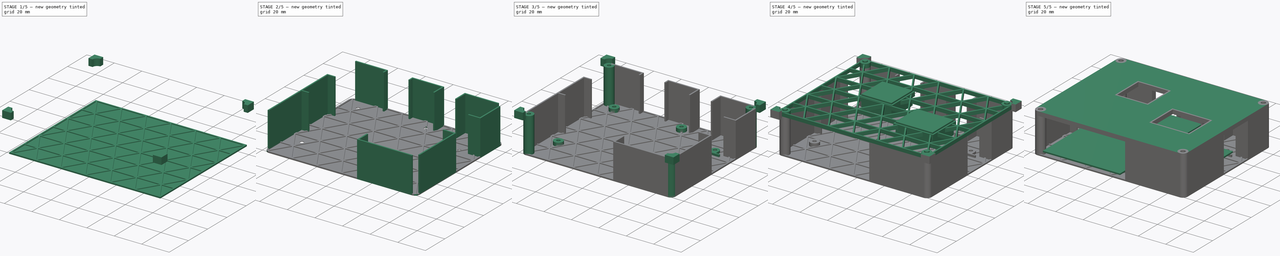
[diagram: build sequence overview — one tinted view per stage of 5, left to right]
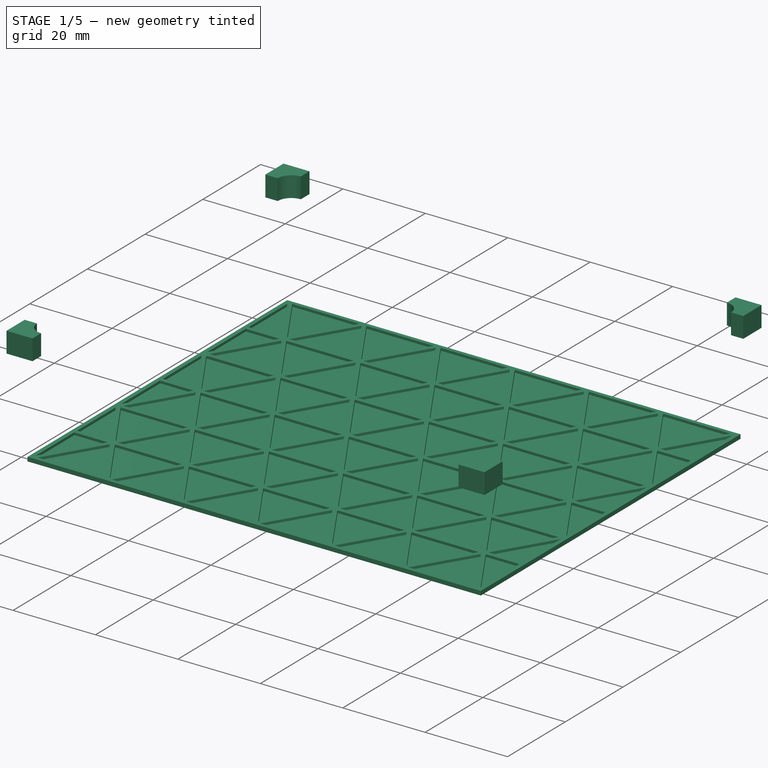
[diagram: stage 1 of 5 — iso view after this stage's code; geometry added in this stage tinted green]
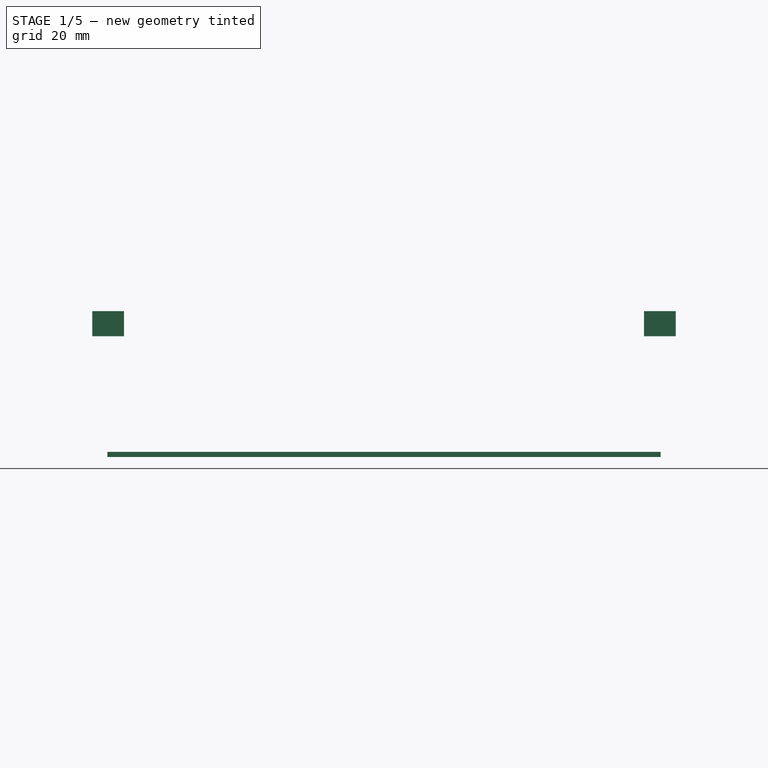
[diagram: stage 1 of 5 — front view after this stage's code; geometry added in this stage tinted green]
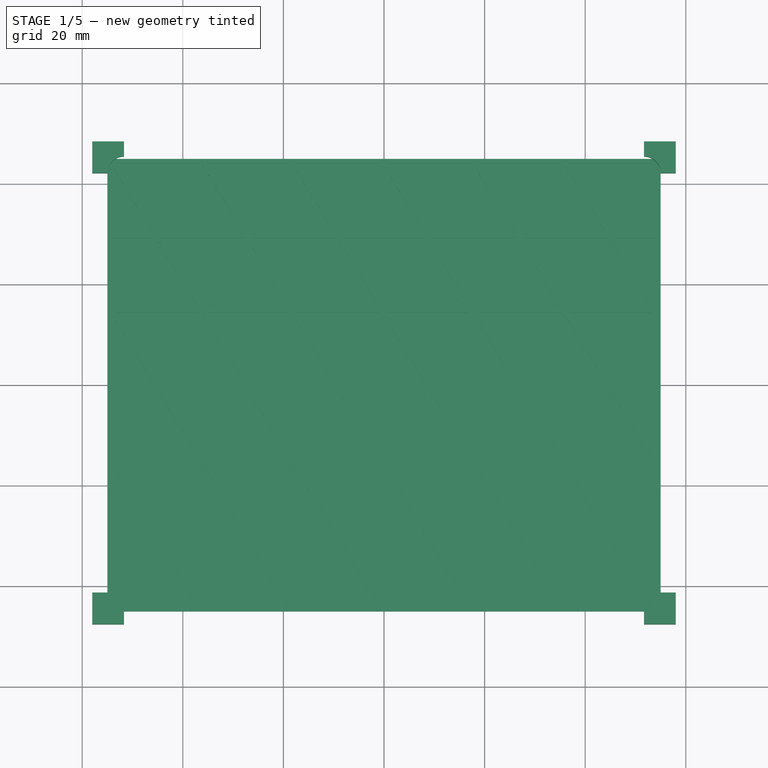
[diagram: stage 1 of 5 — top view after this stage's code; geometry added in this stage tinted green]
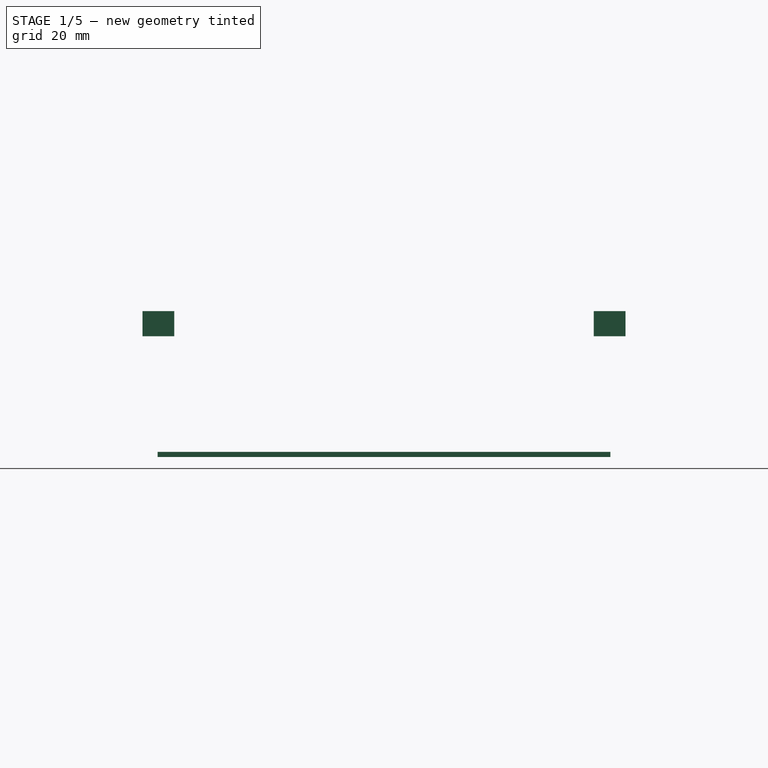
[diagram: stage 1 of 5 — right view after this stage's code; geometry added in this stage tinted green]
FCSTD DOCUMENT  (FreeCAD 0.19R24291 (Git))
Label: enclosure
License: All rights reserved
LicenseURL: http://en.wikipedia.org/wiki/All_rights_reserved
objects: Sketcher::SketchObject×12, Part::Extrusion×12, Part::MultiFuse×4, Part::Box×2, PartDesign::FeatureBase×2, PartDesign::Body×2, Part::Cut×2, Spreadsheet::Sheet×1, Part::Compound×1
note: 37 computed .brp shape members not serialized (recipe doc carries the construction recipe); baked Part::Feature solids carry a one-line shape summary decoded from their .brp

FEATURE [Sketcher::SketchObject] Sketch
  FullyConstrained = true
  sketch-geometry (4):
    g0: LineSegment StartX=-55 StartY=45 StartZ=0 EndX=55 EndY=45 EndZ=0
    g1: LineSegment StartX=55 StartY=45 StartZ=0 EndX=55 EndY=-45 EndZ=0
    g2: LineSegment StartX=55 StartY=-45 StartZ=0 EndX=-55 EndY=-45 EndZ=0
    g3: LineSegment StartX=-55 StartY=-45 StartZ=0 EndX=-55 EndY=45 EndZ=0
  constraints (12):
    c: Coincident(g0,g1)
    c: Coincident(g1,g2)
    c: Coincident(g2,g3)
    c: Coincident(g3,g0)
    c: Horizontal(g0)
    c: Horizontal(g2)
    c: Vertical(g1)
    c: Vertical(g3)
    c: DistanceX(g0,g0) = 110
    c: DistanceY(g1,g1) = 90
    c: DistanceX(g0) = 55
    c: DistanceY(g0) = 45
FEATURE [Part::Extrusion] Extrude
  Base = -> Sketch
  Dir = (0,0,1)
  DirMode = 2
  FaceMakerClass = Part::FaceMakerBullseye
  LengthFwd = 0.4
  LengthRev = 0
  Solid = true
  Symmetric = false
FEATURE [Sketcher::SketchObject] gridsketch
  FullyConstrained = false
  Placement = pos=(0,0,20) rot=(0,0,1;0rad)
  sketch-geometry (238):
    g0: LineSegment StartX=1.4 StartY=1 StartZ=0 EndX=14.7667 EndY=1 EndZ=0
    g1: LineSegment StartX=14.7667 StartY=1 StartZ=0 EndX=14.7667 EndY=9.13397 EndZ=0
    g2: LineSegment StartX=14.7667 StartY=9.13397 StartZ=0 EndX=1.4 EndY=1 EndZ=0
    g3: LineSegment StartX=1.4 StartY=109 StartZ=0 EndX=14.7667 EndY=109 EndZ=0
    g4: LineSegment StartX=14.7667 StartY=109 StartZ=0 EndX=14.7667 EndY=100.866 EndZ=0
    g5: LineSegment StartX=14.7667 StartY=100.866 StartZ=0 EndX=1.4 EndY=109 EndZ=0
    g6: LineSegment StartX=29.1333 StartY=1 StartZ=0 EndX=15.7667 EndY=1 EndZ=0
    g7: LineSegment StartX=15.7667 StartY=1 StartZ=0 EndX=15.7667 EndY=9.13397 EndZ=0
    g8: LineSegment StartX=15.7667 StartY=9.13397 StartZ=0 EndX=29.1333 EndY=1 EndZ=0
    g9: LineSegment StartX=29.1333 StartY=109 StartZ=0 EndX=15.7667 EndY=109 EndZ=0
    g10: LineSegment StartX=15.7667 StartY=109 StartZ=0 EndX=15.7667 EndY=100.866 EndZ=0
    g11: LineSegment StartX=15.7667 StartY=100.866 StartZ=0 EndX=29.1333 EndY=109 EndZ=0
    g12: LineSegment StartX=31.1333 StartY=1 StartZ=0 EndX=44.5 EndY=1 EndZ=0
    g13: LineSegment StartX=44.5 StartY=1 StartZ=0 EndX=44.5 EndY=9.13397 EndZ=0
    g14: LineSegment StartX=44.5 StartY=9.13397 StartZ=0 EndX=31.1333 EndY=1 EndZ=0
    g15: LineSegment StartX=31.1333 StartY=109 StartZ=0 EndX=44.5 EndY=109 EndZ=0
    g16: LineSegment StartX=44.5 StartY=109 StartZ=0 EndX=44.5 EndY=100.866 EndZ=0
    g17: LineSegment StartX=44.5 StartY=100.866 StartZ=0 EndX=31.1333 EndY=109 EndZ=0
    g18: LineSegment StartX=58.8667 StartY=1 StartZ=0 EndX=45.5 EndY=1 EndZ=0
    g19: LineSegment StartX=45.5 StartY=1 StartZ=0 EndX=45.5 EndY=9.13397 EndZ=0
    g20: LineSegment StartX=45.5 StartY=9.13397 StartZ=0 EndX=58.8667 EndY=1 EndZ=0
    g21: LineSegment StartX=58.8667 StartY=109 StartZ=0 EndX=45.5 EndY=109 EndZ=0
    g22: LineSegment StartX=45.5 StartY=109 StartZ=0 EndX=45.5 EndY=100.866 EndZ=0
    g23: LineSegment StartX=45.5 StartY=100.866 StartZ=0 EndX=58.8667 EndY=109 EndZ=0
    g24: LineSegment StartX=60.8667 StartY=1 StartZ=0 EndX=74.2333 EndY=1 EndZ=0
    g25: LineSegment StartX=74.2333 StartY=1 StartZ=0 EndX=74.2333 EndY=9.13397 EndZ=0
    g26: LineSegment StartX=74.2333 StartY=9.13397 StartZ=0 EndX=60.8667 EndY=1 EndZ=0
    g27: LineSegment StartX=60.8667 StartY=109 StartZ=0 EndX=74.2333 EndY=109 EndZ=0
    g28: LineSegment StartX=74.2333 StartY=109 StartZ=0 EndX=74.2333 EndY=100.866 EndZ=0
    g29: LineSegment StartX=74.2333 StartY=100.866 StartZ=0 EndX=60.8667 EndY=109 EndZ=0
    g30: LineSegment StartX=88.6 StartY=1 StartZ=0 EndX=75.2333 EndY=1 EndZ=0
    g31: LineSegment StartX=75.2333 StartY=1 StartZ=0 EndX=75.2333 EndY=9.13397 EndZ=0
    g32: LineSegment StartX=75.2333 StartY=9.13397 StartZ=0 EndX=88.6 EndY=1 EndZ=0
    g33: LineSegment StartX=88.6 StartY=109 StartZ=0 EndX=75.2333 EndY=109 EndZ=0
    g34: LineSegment StartX=75.2333 StartY=109 StartZ=0 EndX=75.2333 EndY=100.866 EndZ=0
    g35: LineSegment StartX=75.2333 StartY=100.866 StartZ=0 EndX=88.6 EndY=109 EndZ=0
    g36: LineSegment StartX=0.9 StartY=1.86603 StartZ=0 EndX=0.9 EndY=18.134 EndZ=0
    g37: LineSegment StartX=0.9 StartY=18.134 StartZ=0 EndX=14.2667 EndY=10 EndZ=0
    g38: LineSegment StartX=14.2667 StartY=10 StartZ=0 EndX=0.9 EndY=1.86603 EndZ=0
    g39: LineSegment StartX=14.7667 StartY=10.866 StartZ=0 EndX=14.7667 EndY=27.134 EndZ=0
    g40: LineSegment StartX=14.7667 StartY=27.134 StartZ=0 EndX=1.4 EndY=19 EndZ=0
    g41: LineSegment StartX=1.4 StartY=19 StartZ=0 EndX=14.7667 EndY=10.866 EndZ=0
    g42: LineSegment StartX=29.6333 StartY=1.86603 StartZ=0 EndX=29.6333 EndY=18.134 EndZ=0
    g43: LineSegment StartX=29.6333 StartY=18.134 StartZ=0 EndX=16.2667 EndY=10 EndZ=0
    g44: LineSegment StartX=16.2667 StartY=10 StartZ=0 EndX=29.6333 EndY=1.86603 EndZ=0
    g45: LineSegment StartX=15.7667 StartY=10.866 StartZ=0 EndX=15.7667 EndY=27.134 EndZ=0
    g46: LineSegment StartX=15.7667 StartY=27.134 StartZ=0 EndX=29.1333 EndY=19 EndZ=0
    g47: LineSegment StartX=29.1333 StartY=19 StartZ=0 EndX=15.7667 EndY=10.866 EndZ=0
    g48: LineSegment StartX=30.6333 StartY=1.86603 StartZ=0 EndX=30.6333 EndY=18.134 EndZ=0
    g49: LineSegment StartX=30.6333 StartY=18.134 StartZ=0 EndX=44 EndY=10 EndZ=0
    g50: LineSegment StartX=44 StartY=10 StartZ=0 EndX=30.6333 EndY=1.86603 EndZ=0
    g51: LineSegment StartX=44.5 StartY=10.866 StartZ=0 EndX=44.5 EndY=27.134 EndZ=0
    g52: LineSegment StartX=44.5 StartY=27.134 StartZ=0 EndX=31.1333 EndY=19 EndZ=0
    g53: LineSegment StartX=31.1333 StartY=19 StartZ=0 EndX=44.5 EndY=10.866 EndZ=0
    g54: LineSegment StartX=59.3667 StartY=1.86603 StartZ=0 EndX=59.3667 EndY=18.134 EndZ=0
    g55: LineSegment StartX=59.3667 StartY=18.134 StartZ=0 EndX=46 EndY=10 EndZ=0
    g56: LineSegment StartX=46 StartY=10 StartZ=0 EndX=59.3667 EndY=1.86603 EndZ=0
    g57: LineSegment StartX=45.5 StartY=10.866 StartZ=0 EndX=45.5 EndY=27.134 EndZ=0
    g58: LineSegment StartX=45.5 StartY=27.134 StartZ=0 EndX=58.8667 EndY=19 EndZ=0
    g59: LineSegment StartX=58.8667 StartY=19 StartZ=0 EndX=45.5 EndY=10.866 EndZ=0
    g60: LineSegment StartX=60.3667 StartY=1.86603 StartZ=0 EndX=60.3667 EndY=18.134 EndZ=0
    g61: LineSegment StartX=60.3667 StartY=18.134 StartZ=0 EndX=73.7333 EndY=10 EndZ=0
    g62: LineSegment StartX=73.7333 StartY=10 StartZ=0 EndX=60.3667 EndY=1.86603 EndZ=0
    g63: LineSegment StartX=74.2333 StartY=10.866 StartZ=0 EndX=74.2333 EndY=27.134 EndZ=0
    g64: LineSegment StartX=74.2333 StartY=27.134 StartZ=0 EndX=60.8667 EndY=19 EndZ=0
    g65: LineSegment StartX=60.8667 StartY=19 StartZ=0 EndX=74.2333 EndY=10.866 EndZ=0
    g66: LineSegment StartX=89.1 StartY=1.86603 StartZ=0 EndX=89.1 EndY=18.134 EndZ=0
    g67: LineSegment StartX=89.1 StartY=18.134 StartZ=0 EndX=75.7333 EndY=10 EndZ=0
    g68: LineSegment StartX=75.7333 StartY=10 StartZ=0 EndX=89.1 EndY=1.86603 EndZ=0
    g69: LineSegment StartX=75.2333 StartY=10.866 StartZ=0 EndX=75.2333 EndY=27.134 EndZ=0
    g70: LineSegment StartX=75.2333 StartY=27.134 StartZ=0 EndX=88.6 EndY=19 EndZ=0
    g71: LineSegment StartX=88.6 StartY=19 StartZ=0 EndX=75.2333 EndY=10.866 EndZ=0
    g72: LineSegment StartX=0.9 StartY=19.866 StartZ=0 EndX=0.9 EndY=36.134 EndZ=0
    g73: LineSegment StartX=0.9 StartY=36.134 StartZ=0 EndX=14.2667 EndY=28 EndZ=0
    g74: LineSegment StartX=14.2667 StartY=28 StartZ=0 EndX=0.9 EndY=19.866 EndZ=0
    g75: LineSegment StartX=14.7667 StartY=28.866 StartZ=0 EndX=14.7667 EndY=45.134 EndZ=0
    g76: LineSegment StartX=14.7667 StartY=45.134 StartZ=0 EndX=1.4 EndY=37 EndZ=0
    g77: LineSegment StartX=1.4 StartY=37 StartZ=0 EndX=14.7667 EndY=28.866 EndZ=0
    g78: LineSegment StartX=29.6333 StartY=19.866 StartZ=0 EndX=29.6333 EndY=36.134 EndZ=0
    g79: LineSegment StartX=29.6333 StartY=36.134 StartZ=0 EndX=16.2667 EndY=28 EndZ=0
    g80: LineSegment StartX=16.2667 StartY=28 StartZ=0 EndX=29.6333 EndY=19.866 EndZ=0
    g81: LineSegment StartX=15.7667 StartY=28.866 StartZ=0 EndX=15.7667 EndY=45.134 EndZ=0
    g82: LineSegment StartX=15.7667 StartY=45.134 StartZ=0 EndX=29.1333 EndY=37 EndZ=0
    g83: LineSegment StartX=29.1333 StartY=37 StartZ=0 EndX=15.7667 EndY=28.866 EndZ=0
    g84: LineSegment StartX=30.6333 StartY=19.866 StartZ=0 EndX=30.6333 EndY=36.134 EndZ=0
    g85: LineSegment StartX=30.6333 StartY=36.134 StartZ=0 EndX=44 EndY=28 EndZ=0
    g86: LineSegment StartX=44 StartY=28 StartZ=0 EndX=30.6333 EndY=19.866 EndZ=0
    g87: LineSegment StartX=44.5 StartY=28.866 StartZ=0 EndX=44.5 EndY=45.134 EndZ=0
    g88: LineSegment StartX=44.5 StartY=45.134 StartZ=0 EndX=31.1333 EndY=37 EndZ=0
    g89: LineSegment StartX=31.1333 StartY=37 StartZ=0 EndX=44.5 EndY=28.866 EndZ=0
    g90: LineSegment StartX=59.3667 StartY=19.866 StartZ=0 EndX=59.3667 EndY=36.134 EndZ=0
    g91: LineSegment StartX=59.3667 StartY=36.134 StartZ=0 EndX=46 EndY=28 EndZ=0
    g92: LineSegment StartX=46 StartY=28 StartZ=0 EndX=59.3667 EndY=19.866 EndZ=0
    g93: LineSegment StartX=45.5 StartY=28.866 StartZ=0 EndX=45.5 EndY=45.134 EndZ=0
    g94: LineSegment StartX=45.5 StartY=45.134 StartZ=0 EndX=58.8667 EndY=37 EndZ=0
    g95: LineSegment StartX=58.8667 StartY=37 StartZ=0 EndX=45.5 EndY=28.866 EndZ=0
    g96: LineSegment StartX=60.3667 StartY=19.866 StartZ=0 EndX=60.3667 EndY=36.134 EndZ=0
    g97: LineSegment StartX=60.3667 StartY=36.134 StartZ=0 EndX=73.7333 EndY=28 EndZ=0
    g98: LineSegment StartX=73.7333 StartY=28 StartZ=0 EndX=60.3667 EndY=19.866 EndZ=0
    g99: LineSegment StartX=74.2333 StartY=28.866 StartZ=0 EndX=74.2333 EndY=45.134 EndZ=0
    g100: LineSegment StartX=74.2333 StartY=45.134 StartZ=0 EndX=60.8667 EndY=37 EndZ=0
    g101: LineSegment StartX=60.8667 StartY=37 StartZ=0 EndX=74.2333 EndY=28.866 EndZ=0
    g102: LineSegment StartX=89.1 StartY=19.866 StartZ=0 EndX=89.1 EndY=36.134 EndZ=0
    g103: LineSegment StartX=89.1 StartY=36.134 StartZ=0 EndX=75.7333 EndY=28 EndZ=0
    g104: LineSegment StartX=75.7333 StartY=28 StartZ=0 EndX=89.1 EndY=19.866 EndZ=0
    g105: LineSegment StartX=75.2333 StartY=28.866 StartZ=0 EndX=75.2333 EndY=45.134 EndZ=0
    g106: LineSegment StartX=75.2333 StartY=45.134 StartZ=0 EndX=88.6 EndY=37 EndZ=0
    g107: LineSegment StartX=88.6 StartY=37 StartZ=0 EndX=75.2333 EndY=28.866 EndZ=0
    g108: LineSegment StartX=0.9 StartY=37.866 StartZ=0 EndX=0.9 EndY=54.134 EndZ=0
    g109: LineSegment StartX=0.9 StartY=54.134 StartZ=0 EndX=14.2667 EndY=46 EndZ=0
    g110: LineSegment StartX=14.2667 StartY=46 StartZ=0 EndX=0.9 EndY=37.866 EndZ=0
    g111: LineSegment StartX=14.7667 StartY=46.866 StartZ=0 EndX=14.7667 EndY=63.134 EndZ=0
    g112: LineSegment StartX=14.7667 StartY=63.134 StartZ=0 EndX=1.4 EndY=55 EndZ=0
    g113: LineSegment StartX=1.4 StartY=55 StartZ=0 EndX=14.7667 EndY=46.866 EndZ=0
    g114: LineSegment StartX=29.6333 StartY=37.866 StartZ=0 EndX=29.6333 EndY=54.134 EndZ=0
    g115: LineSegment StartX=29.6333 StartY=54.134 StartZ=0 EndX=16.2667 EndY=46 EndZ=0
    g116: LineSegment StartX=16.2667 StartY=46 StartZ=0 EndX=29.6333 EndY=37.866 EndZ=0
    g117: LineSegment StartX=15.7667 StartY=46.866 StartZ=0 EndX=15.7667 EndY=63.134 EndZ=0
    g118: LineSegment StartX=15.7667 StartY=63.134 StartZ=0 EndX=29.1333 EndY=55 EndZ=0
    g119: LineSegment StartX=29.1333 StartY=55 StartZ=0 EndX=15.7667 EndY=46.866 EndZ=0
    g120: LineSegment StartX=30.6333 StartY=37.866 StartZ=0 EndX=30.6333 EndY=54.134 EndZ=0
    g121: LineSegment StartX=30.6333 StartY=54.134 StartZ=0 EndX=44 EndY=46 EndZ=0
    g122: LineSegment StartX=44 StartY=46 StartZ=0 EndX=30.6333 EndY=37.866 EndZ=0
    g123: LineSegment StartX=44.5 StartY=46.866 StartZ=0 EndX=44.5 EndY=63.134 EndZ=0
    g124: LineSegment StartX=44.5 StartY=63.134 StartZ=0 EndX=31.1333 EndY=55 EndZ=0
    g125: LineSegment StartX=31.1333 StartY=55 StartZ=0 EndX=44.5 EndY=46.866 EndZ=0
    g126: LineSegment StartX=59.3667 StartY=37.866 StartZ=0 EndX=59.3667 EndY=54.134 EndZ=0
    g127: LineSegment StartX=59.3667 StartY=54.134 StartZ=0 EndX=46 EndY=46 EndZ=0
    g128: LineSegment StartX=46 StartY=46 StartZ=0 EndX=59.3667 EndY=37.866 EndZ=0
    g129: LineSegment StartX=45.5 StartY=46.866 StartZ=0 EndX=45.5 EndY=63.134 EndZ=0
    g130: LineSegment StartX=45.5 StartY=63.134 StartZ=0 EndX=58.8667 EndY=55 EndZ=0
    g131: LineSegment StartX=58.8667 StartY=55 StartZ=0 EndX=45.5 EndY=46.866 EndZ=0
    g132: LineSegment StartX=60.3667 StartY=37.866 StartZ=0 EndX=60.3667 EndY=54.134 EndZ=0
    g133: LineSegment StartX=60.3667 StartY=54.134 StartZ=0 EndX=73.7333 EndY=46 EndZ=0
    g134: LineSegment StartX=73.7333 StartY=46 StartZ=0 EndX=60.3667 EndY=37.866 EndZ=0
    g135: LineSegment StartX=74.2333 StartY=46.866 StartZ=0 EndX=74.2333 EndY=63.134 EndZ=0
    g136: LineSegment StartX=74.2333 StartY=63.134 StartZ=0 EndX=60.8667 EndY=55 EndZ=0
    g137: LineSegment StartX=60.8667 StartY=55 StartZ=0 EndX=74.2333 EndY=46.866 EndZ=0
    g138: LineSegment StartX=89.1 StartY=37.866 StartZ=0 EndX=89.1 EndY=54.134 EndZ=0
    g139: LineSegment StartX=89.1 StartY=54.134 StartZ=0 EndX=75.7333 EndY=46 EndZ=0
    g140: LineSegment StartX=75.7333 StartY=46 StartZ=0 EndX=89.1 EndY=37.866 EndZ=0
    g141: LineSegment StartX=75.2333 StartY=46.866 StartZ=0 EndX=75.2333 EndY=63.134 EndZ=0
    g142: LineSegment StartX=75.2333 StartY=63.134 StartZ=0 EndX=88.6 EndY=55 EndZ=0
    g143: LineSegment StartX=88.6 StartY=55 StartZ=0 EndX=75.2333 EndY=46.866 EndZ=0
    g144: LineSegment StartX=0.9 StartY=55.866 StartZ=0 EndX=0.9 EndY=72.134 EndZ=0
    g145: LineSegment StartX=0.9 StartY=72.134 StartZ=0 EndX=14.2667 EndY=64 EndZ=0
    g146: LineSegment StartX=14.2667 StartY=64 StartZ=0 EndX=0.9 EndY=55.866 EndZ=0
    g147: LineSegment StartX=14.7667 StartY=64.866 StartZ=0 EndX=14.7667 EndY=81.134 EndZ=0
    g148: LineSegment StartX=14.7667 StartY=81.134 StartZ=0 EndX=1.4 EndY=73 EndZ=0
    g149: LineSegment StartX=1.4 StartY=73 StartZ=0 EndX=14.7667 EndY=64.866 EndZ=0
    g150: LineSegment StartX=29.6333 StartY=55.866 StartZ=0 EndX=29.6333 EndY=72.134 EndZ=0
    g151: LineSegment StartX=29.6333 StartY=72.134 StartZ=0 EndX=16.2667 EndY=64 EndZ=0
    g152: LineSegment StartX=16.2667 StartY=64 StartZ=0 EndX=29.6333 EndY=55.866 EndZ=0
    g153: LineSegment StartX=15.7667 StartY=64.866 StartZ=0 EndX=15.7667 EndY=81.134 EndZ=0
    g154: LineSegment StartX=15.7667 StartY=81.134 StartZ=0 EndX=29.1333 EndY=73 EndZ=0
    g155: LineSegment StartX=29.1333 StartY=73 StartZ=0 EndX=15.7667 EndY=64.866 EndZ=0
    g156: LineSegment StartX=30.6333 StartY=55.866 StartZ=0 EndX=30.6333 EndY=72.134 EndZ=0
    g157: LineSegment StartX=30.6333 StartY=72.134 StartZ=0 EndX=44 EndY=64 EndZ=0
    g158: LineSegment StartX=44 StartY=64 StartZ=0 EndX=30.6333 EndY=55.866 EndZ=0
    g159: LineSegment StartX=44.5 StartY=64.866 StartZ=0 EndX=44.5 EndY=81.134 EndZ=0
    g160: LineSegment StartX=44.5 StartY=81.134 StartZ=0 EndX=31.1333 EndY=73 EndZ=0
    g161: LineSegment StartX=31.1333 StartY=73 StartZ=0 EndX=44.5 EndY=64.866 EndZ=0
    g162: LineSegment StartX=59.3667 StartY=55.866 StartZ=0 EndX=59.3667 EndY=72.134 EndZ=0
    g163: LineSegment StartX=59.3667 StartY=72.134 StartZ=0 EndX=46 EndY=64 EndZ=0
    g164: LineSegment StartX=46 StartY=64 StartZ=0 EndX=59.3667 EndY=55.866 EndZ=0
    g165: LineSegment StartX=45.5 StartY=64.866 StartZ=0 EndX=45.5 EndY=81.134 EndZ=0
    g166: LineSegment StartX=45.5 StartY=81.134 StartZ=0 EndX=58.8667 EndY=73 EndZ=0
    g167: LineSegment StartX=58.8667 StartY=73 StartZ=0 EndX=45.5 EndY=64.866 EndZ=0
    g168: LineSegment StartX=60.3667 StartY=55.866 StartZ=0 EndX=60.3667 EndY=72.134 EndZ=0
    g169: LineSegment StartX=60.3667 StartY=72.134 StartZ=0 EndX=73.7333 EndY=64 EndZ=0
    g170: LineSegment StartX=73.7333 StartY=64 StartZ=0 EndX=60.3667 EndY=55.866 EndZ=0
    g171: LineSegment StartX=74.2333 StartY=64.866 StartZ=0 EndX=74.2333 EndY=81.134 EndZ=0
    g172: LineSegment StartX=74.2333 StartY=81.134 StartZ=0 EndX=60.8667 EndY=73 EndZ=0
    g173: LineSegment StartX=60.8667 StartY=73 StartZ=0 EndX=74.2333 EndY=64.866 EndZ=0
    g174: LineSegment StartX=89.1 StartY=55.866 StartZ=0 EndX=89.1 EndY=72.134 EndZ=0
    g175: LineSegment StartX=89.1 StartY=72.134 StartZ=0 EndX=75.7333 EndY=64 EndZ=0
    g176: LineSegment StartX=75.7333 StartY=64 StartZ=0 EndX=89.1 EndY=55.866 EndZ=0
    g177: LineSegment StartX=75.2333 StartY=64.866 StartZ=0 EndX=75.2333 EndY=81.134 EndZ=0
    g178: LineSegment StartX=75.2333 StartY=81.134 StartZ=0 EndX=88.6 EndY=73 EndZ=0
    g179: LineSegment StartX=88.6 StartY=73 StartZ=0 EndX=75.2333 EndY=64.866 EndZ=0
    g180: LineSegment StartX=0.9 StartY=73.866 StartZ=0 EndX=0.9 EndY=90.134 EndZ=0
    g181: LineSegment StartX=0.9 StartY=90.134 StartZ=0 EndX=14.2667 EndY=82 EndZ=0
    g182: LineSegment StartX=14.2667 StartY=82 StartZ=0 EndX=0.9 EndY=73.866 EndZ=0
    g183: LineSegment StartX=14.7667 StartY=82.866 StartZ=0 EndX=14.7667 EndY=99.134 EndZ=0
    g184: LineSegment StartX=14.7667 StartY=99.134 StartZ=0 EndX=1.4 EndY=91 EndZ=0
    g185: LineSegment StartX=1.4 StartY=91 StartZ=0 EndX=14.7667 EndY=82.866 EndZ=0
    g186: LineSegment StartX=29.6333 StartY=73.866 StartZ=0 EndX=29.6333 EndY=90.134 EndZ=0
    g187: LineSegment StartX=29.6333 StartY=90.134 StartZ=0 EndX=16.2667 EndY=82 EndZ=0
    g188: LineSegment StartX=16.2667 StartY=82 StartZ=0 EndX=29.6333 EndY=73.866 EndZ=0
    g189: LineSegment StartX=15.7667 StartY=82.866 StartZ=0 EndX=15.7667 EndY=99.134 EndZ=0
    g190: LineSegment StartX=15.7667 StartY=99.134 StartZ=0 EndX=29.1333 EndY=91 EndZ=0
    g191: LineSegment StartX=29.1333 StartY=91 StartZ=0 EndX=15.7667 EndY=82.866 EndZ=0
    g192: LineSegment StartX=30.6333 StartY=73.866 StartZ=0 EndX=30.6333 EndY=90.134 EndZ=0
    g193: LineSegment StartX=30.6333 StartY=90.134 StartZ=0 EndX=44 EndY=82 EndZ=0
    g194: LineSegment StartX=44 StartY=82 StartZ=0 EndX=30.6333 EndY=73.866 EndZ=0
    g195: LineSegment StartX=44.5 StartY=82.866 StartZ=0 EndX=44.5 EndY=99.134 EndZ=0
    g196: LineSegment StartX=44.5 StartY=99.134 StartZ=0 EndX=31.1333 EndY=91 EndZ=0
    g197: LineSegment StartX=31.1333 StartY=91 StartZ=0 EndX=44.5 EndY=82.866 EndZ=0
    g198: LineSegment StartX=59.3667 StartY=73.866 StartZ=0 EndX=59.3667 EndY=90.134 EndZ=0
    g199: LineSegment StartX=59.3667 StartY=90.134 StartZ=0 EndX=46 EndY=82 EndZ=0
    g200: LineSegment StartX=46 StartY=82 StartZ=0 EndX=59.3667 EndY=73.866 EndZ=0
    g201: LineSegment StartX=45.5 StartY=82.866 StartZ=0 EndX=45.5 EndY=99.134 EndZ=0
    g202: LineSegment StartX=45.5 StartY=99.134 StartZ=0 EndX=58.8667 EndY=91 EndZ=0
    g203: LineSegment StartX=58.8667 StartY=91 StartZ=0 EndX=45.5 EndY=82.866 EndZ=0
    g204: LineSegment StartX=60.3667 StartY=73.866 StartZ=0 EndX=60.3667 EndY=90.134 EndZ=0
    g205: LineSegment StartX=60.3667 StartY=90.134 StartZ=0 EndX=73.7333 EndY=82 EndZ=0
    g206: LineSegment StartX=73.7333 StartY=82 StartZ=0 EndX=60.3667 EndY=73.866 EndZ=0
    g207: LineSegment StartX=74.2333 StartY=82.866 StartZ=0 EndX=74.2333 EndY=99.134 EndZ=0
    g208: LineSegment StartX=74.2333 StartY=99.134 StartZ=0 EndX=60.8667 EndY=91 EndZ=0
    g209: LineSegment StartX=60.8667 StartY=91 StartZ=0 EndX=74.2333 EndY=82.866 EndZ=0
    g210: LineSegment StartX=89.1 StartY=73.866 StartZ=0 EndX=89.1 EndY=90.134 EndZ=0
    g211: LineSegment StartX=89.1 StartY=90.134 StartZ=0 EndX=75.7333 EndY=82 EndZ=0
    g212: LineSegment StartX=75.7333 StartY=82 StartZ=0 EndX=89.1 EndY=73.866 EndZ=0
    g213: LineSegment StartX=75.2333 StartY=82.866 StartZ=0 EndX=75.2333 EndY=99.134 EndZ=0
    g214: LineSegment StartX=75.2333 StartY=99.134 StartZ=0 EndX=88.6 EndY=91 EndZ=0
    g215: LineSegment StartX=88.6 StartY=91 StartZ=0 EndX=75.2333 EndY=82.866 EndZ=0
    g216: LineSegment StartX=0.9 StartY=91.866 StartZ=0 EndX=0.9 EndY=108.134 EndZ=0
    g217: LineSegment StartX=0.9 StartY=108.134 StartZ=0 EndX=14.2667 EndY=100 EndZ=0
    g218: LineSegment StartX=14.2667 StartY=100 StartZ=0 EndX=0.9 EndY=91.866 EndZ=0
    g219: LineSegment StartX=29.6333 StartY=91.866 StartZ=0 EndX=29.6333 EndY=108.134 EndZ=0
    g220: LineSegment StartX=29.6333 StartY=108.134 StartZ=0 EndX=16.2667 EndY=100 EndZ=0
    g221: LineSegment StartX=16.2667 StartY=100 StartZ=0 EndX=29.6333 EndY=91.866 EndZ=0
    g222: LineSegment StartX=30.6333 StartY=91.866 StartZ=0 EndX=30.6333 EndY=108.134 EndZ=0
    g223: LineSegment StartX=30.6333 StartY=108.134 StartZ=0 EndX=44 EndY=100 EndZ=0
    g224: LineSegment StartX=44 StartY=100 StartZ=0 EndX=30.6333 EndY=91.866 EndZ=0
    g225: LineSegment StartX=59.3667 StartY=91.866 StartZ=0 EndX=59.3667 EndY=108.134 EndZ=0
    g226: LineSegment StartX=59.3667 StartY=108.134 StartZ=0 EndX=46 EndY=100 EndZ=0
    g227: LineSegment StartX=46 StartY=100 StartZ=0 EndX=59.3667 EndY=91.866 EndZ=0
    g228: LineSegment StartX=60.3667 StartY=91.866 StartZ=0 EndX=60.3667 EndY=108.134 EndZ=0
    g229: LineSegment StartX=60.3667 StartY=108.134 StartZ=0 EndX=73.7333 EndY=100 EndZ=0
    g230: LineSegment StartX=73.7333 StartY=100 StartZ=0 EndX=60.3667 EndY=91.866 EndZ=0
    g231: LineSegment StartX=89.1 StartY=91.866 StartZ=0 EndX=89.1 EndY=108.134 EndZ=0
    g232: LineSegment StartX=89.1 StartY=108.134 StartZ=0 EndX=75.7333 EndY=100 EndZ=0
    g233: LineSegment StartX=75.7333 StartY=100 StartZ=0 EndX=89.1 EndY=91.866 EndZ=0
    g234: LineSegment StartX=0 StartY=0 StartZ=0 EndX=0 EndY=110 EndZ=0
    g235: LineSegment StartX=0 StartY=110 StartZ=0 EndX=90 EndY=110 EndZ=0
    g236: LineSegment StartX=90 StartY=110 StartZ=0 EndX=90 EndY=0 EndZ=0
    g237: LineSegment StartX=90 StartY=0 StartZ=0 EndX=0 EndY=0 EndZ=0
FEATURE [Part::Extrusion] isogrid
  Base = -> gridsketch
  Dir = (0,0,1)
  DirMode = 2
  FaceMakerClass = Part::FaceMakerBullseye
  LengthFwd = 0.6
  LengthRev = 0
  Placement = pos=(-55,45,-19.6) rot=(0,0,-1;1.5708rad)
  Solid = true
  Symmetric = false
FEATURE [Sketcher::SketchObject] Sketch009
  FullyConstrained = false
  Placement = pos=(0,0,29) rot=(0,0,1;0rad)
  expr: Constraints[2] = Spreadsheet.m2_6_r3 + 2
  expr: Constraints[7] = Spreadsheet.m2_6_r3 + 2
  expr: Constraints[11] = Spreadsheet.m2_6_r3 + 2
  expr: Constraints[14] = Spreadsheet.m2_6_r3 + 2
  sketch-geometry (20):
    g0: ArcOfCircle CenterX=51.7 CenterY=41.7 CenterZ=0 NormalX=0 NormalY=0 NormalZ=1 AngleXU=0 Radius=3.3 StartAngle=9e-16 EndAngle=1.5708
    g1: ArcOfCircle CenterX=51.7 CenterY=-41.7 CenterZ=0 NormalX=0 NormalY=0 NormalZ=1 AngleXU=0 Radius=3.3 StartAngle=4.71239 EndAngle=6.28319
    g2: ArcOfCircle CenterX=-51.7 CenterY=41.7 CenterZ=0 NormalX=0 NormalY=0 NormalZ=1 AngleXU=0 Radius=3.3 StartAngle=1.5708 EndAngle=3.14159
    g3: ArcOfCircle CenterX=-51.7 CenterY=-41.7 CenterZ=0 NormalX=0 NormalY=0 NormalZ=1 AngleXU=0 Radius=3.3 StartAngle=3.14159 EndAngle=4.71239
    g4: LineSegment StartX=-51.7 StartY=48 StartZ=0 EndX=-58 EndY=48 EndZ=0
    g5: LineSegment StartX=-58 StartY=48 StartZ=0 EndX=-58 EndY=41.7 EndZ=0
    g6: LineSegment StartX=-58 StartY=41.7 StartZ=0 EndX=-55 EndY=41.7 EndZ=0
    g7: LineSegment StartX=-51.7 StartY=48 StartZ=0 EndX=-51.7 EndY=45 EndZ=0
    g8: LineSegment StartX=51.7 StartY=48 StartZ=0 EndX=58 EndY=48 EndZ=0
    g9: LineSegment StartX=58 StartY=48 StartZ=0 EndX=58 EndY=41.7 EndZ=0
    g10: LineSegment StartX=58 StartY=41.7 StartZ=0 EndX=55 EndY=41.7 EndZ=0
    g11: LineSegment StartX=51.7 StartY=48 StartZ=0 EndX=51.7 EndY=45 EndZ=0
    g12: LineSegment StartX=58 StartY=-41.7 StartZ=0 EndX=58 EndY=-48 EndZ=0
    g13: LineSegment StartX=58 StartY=-48 StartZ=0 EndX=51.7 EndY=-48 EndZ=0
    g14: LineSegment StartX=51.7 StartY=-48 StartZ=0 EndX=51.7 EndY=-45 EndZ=0
    g15: LineSegment StartX=58 StartY=-41.7 StartZ=0 EndX=55 EndY=-41.7 EndZ=0
    g16: LineSegment StartX=-51.7 StartY=-48 StartZ=0 EndX=-58 EndY=-48 EndZ=0
    g17: LineSegment StartX=-58 StartY=-48 StartZ=0 EndX=-58 EndY=-41.7 EndZ=0
    g18: LineSegment StartX=-58 StartY=-41.7 StartZ=0 EndX=-55 EndY=-41.7 EndZ=0
    g19: LineSegment StartX=-51.7 StartY=-48 StartZ=0 EndX=-51.7 EndY=-45 EndZ=0
  constraints (55):
    c: Vertical(g0,g0)
    c: Horizontal(g0,g0)
    c: Radius(g0) = 3.3
    c: DistanceY(g0) = 45
    c: DistanceX(g0) = 55
    c: Horizontal(g1,g1)
    c: Vertical(g1,g1)
    c: Radius(g1) = 3.3
    c: DistanceY(g1) = -45
    c: Vertical(g2,g2)
    c: Horizontal(g2,g2)
    c: Radius(g2) = 3.3
    c: DistanceX(g2) = -55
    c: Horizontal(g3,g3)
    c: Radius(g3) = 3.3
    c: Vertical(g3,g2)
    c: Horizontal(g4)
    c: Coincident(g4,g5)
    c: Vertical(g5)
    c: Coincident(g5,g6)
    c: Coincident(g6,g2)
    c: Coincident(g4,g7)
    c: Coincident(g7,g2)
    c: Vertical(g7)
    c: Horizontal(g6)
    c: Horizontal(g8)
    c: Coincident(g8,g9)
    c: Vertical(g9)
    c: Coincident(g9,g10)
    c: Coincident(g10,g0)
    c: Horizontal(g10)
    c: Coincident(g8,g11)
    c: Coincident(g11,g0)
    c: Vertical(g11)
    c: Vertical(g12)
    c: Coincident(g12,g13)
    c: Horizontal(g13)
    c: Coincident(g13,g14)
    c: Coincident(g14,g1)
    c: Vertical(g14)
    c: Coincident(g12,g15)
    c: Coincident(g15,g1)
    c: Horizontal(g15)
    c: Horizontal(g16)
    c: Coincident(g16,g17)
    c: Vertical(g17)
    c: Coincident(g17,g18)
    c: Coincident(g18,g3)
    c: Horizontal(g18)
    c: Coincident(g16,g19)
    c: Coincident(g19,g3)
    c: Vertical(g19)
    c: Horizontal(g2,g0)
    c: Horizontal(g1,g3)
    c: Vertical(g3,g3)
FEATURE [Part::Extrusion] Extrude010  label="border"
  Base = -> Sketch009
  Dir = (0,0,1)
  DirMode = 2
  FaceMakerClass = Part::FaceMakerBullseye
  LengthFwd = 0
  LengthRev = 5
  Solid = true
  Symmetric = false
FEATURE [PartDesign::Body] Body
  BaseFeature = -> Extrude010
  Group = -> [Clone]
  Origin = -> Origin
  Placement = pos=(0,0,1) rot=(0,0,1;0rad)
  Tip = -> Clone
FEATURE [PartDesign::FeatureBase] Clone001
  BaseFeature = -> Extrude010
FEATURE [Part::MultiFuse] Fusion003
  Shapes = -> [isogrid,Extrude]
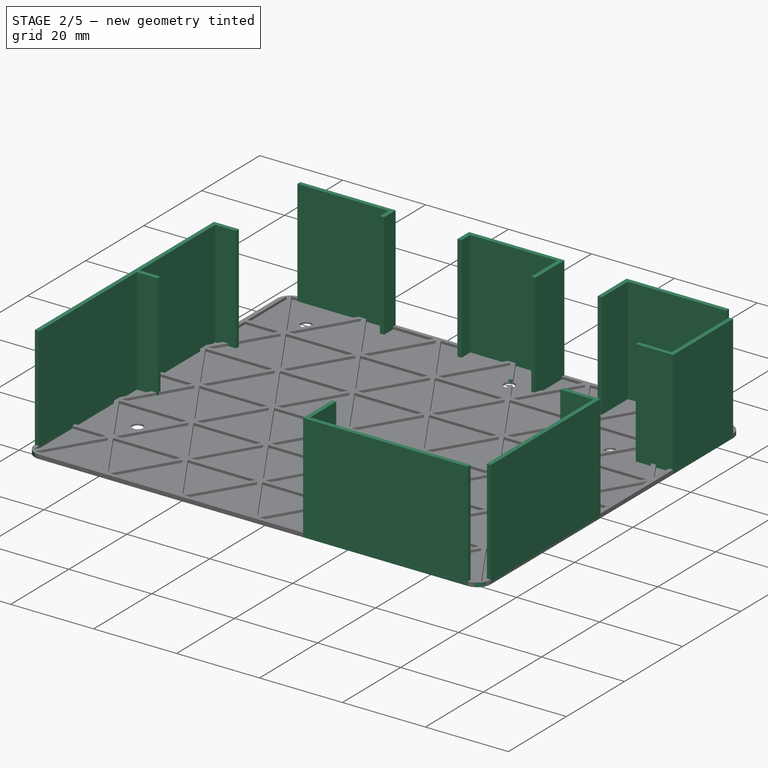
[diagram: stage 2 of 5 — iso view after this stage's code; geometry added in this stage tinted green]
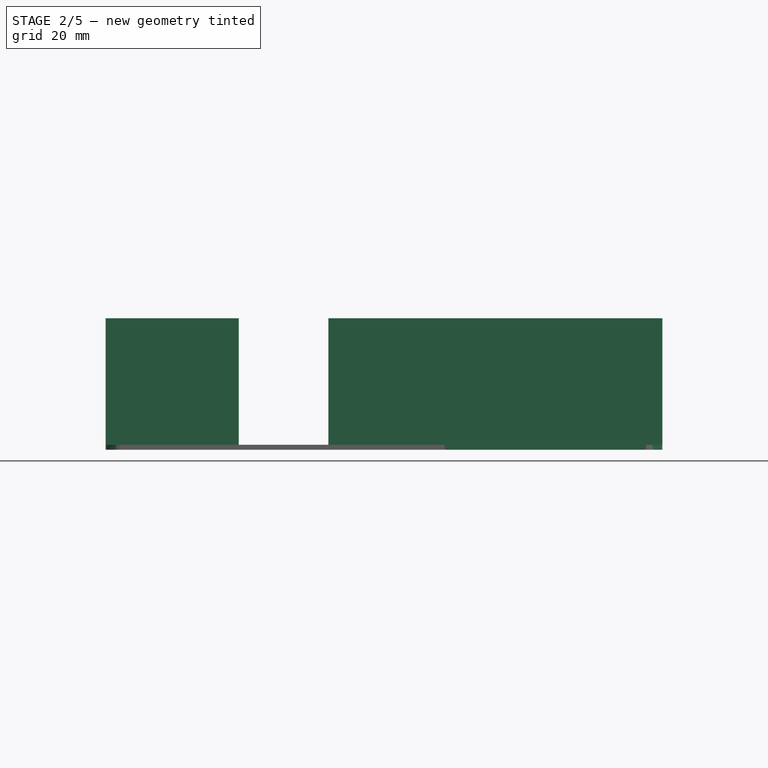
[diagram: stage 2 of 5 — front view after this stage's code; geometry added in this stage tinted green]
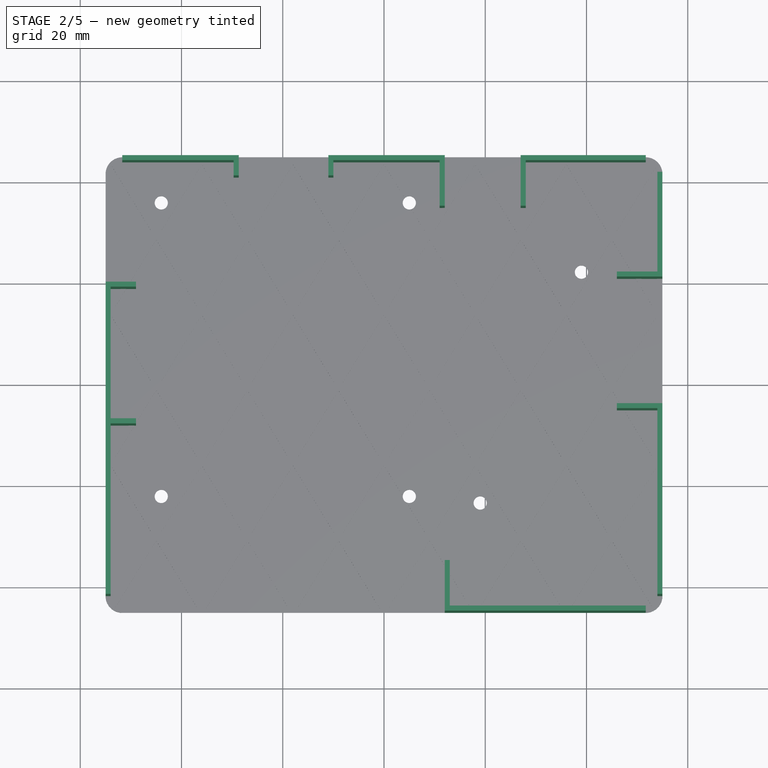
[diagram: stage 2 of 5 — top view after this stage's code; geometry added in this stage tinted green]
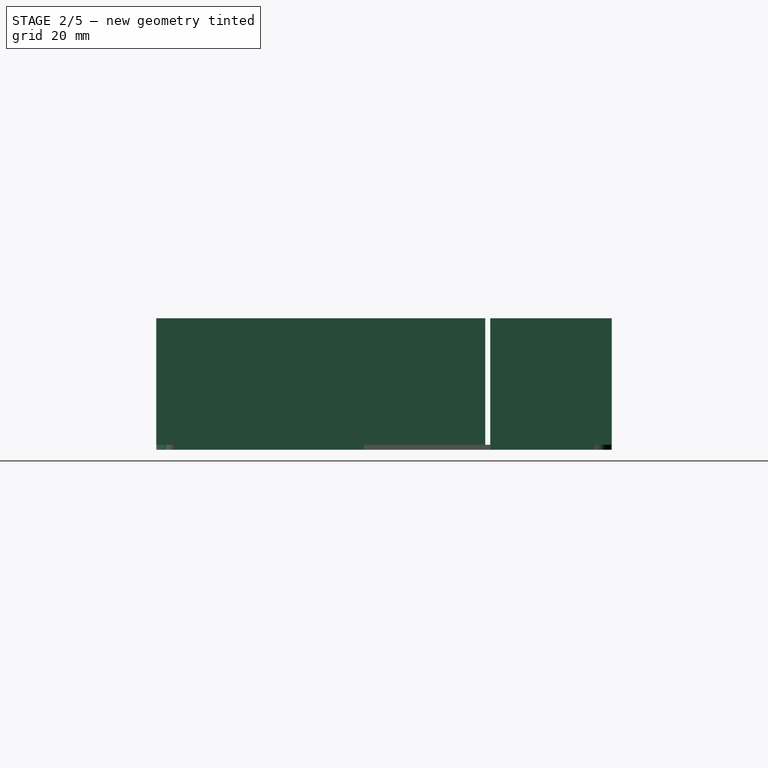
[diagram: stage 2 of 5 — right view after this stage's code; geometry added in this stage tinted green]
FEATURE [Sketcher::SketchObject] Sketch003
  FullyConstrained = true
  Placement = pos=(0,0,1) rot=(0,0,1;0rad)
  sketch-geometry (6):
    g0: Circle CenterX=-44 CenterY=36 CenterZ=0 NormalX=0 NormalY=0 NormalZ=1 AngleXU=0 Radius=1.3
    g1: Circle CenterX=5 CenterY=36 CenterZ=0 NormalX=0 NormalY=0 NormalZ=1 AngleXU=0 Radius=1.3
    g2: Circle CenterX=-44 CenterY=-22 CenterZ=0 NormalX=0 NormalY=0 NormalZ=1 AngleXU=0 Radius=1.3
    g3: Circle CenterX=5 CenterY=-22 CenterZ=0 NormalX=0 NormalY=0 NormalZ=1 AngleXU=0 Radius=1.3
    g4: Circle CenterX=19 CenterY=-23.3 CenterZ=0 NormalX=0 NormalY=0 NormalZ=1 AngleXU=0 Radius=1.3
    g5: Circle CenterX=39 CenterY=22.3 CenterZ=0 NormalX=0 NormalY=0 NormalZ=1 AngleXU=0 Radius=1.3
  constraints (18):
    c: Radius(g0) = 1.3
    c: Equal(g0,g1) = 1.3
    c: Equal(g0,g2) = 1.3
    c: Equal(g0,g3) = 1.3
    c: Horizontal(g0,g1)
    c: Vertical(g0,g2)
    c: Horizontal(g3,g2)
    c: Vertical(g1,g3)
    c: DistanceY(g2,g0) = 58
    c: DistanceX(g0,g1) = 49
    c: DistanceY(g3) = -22
    c: DistanceX(g0) = -44
    c: Radius(g5) = 1.3
    c: Radius(g4) = 1.3
    c: DistanceY(g5) = 22.3
    c: DistanceY(g4) = -23.3
    c: DistanceX(g5) = 39
    c: DistanceX(g4) = 19
FEATURE [Part::Extrusion] Extrude003
  Base = -> Sketch003
  Dir = (0,0,1)
  DirMode = 2
  FaceMakerClass = Part::FaceMakerBullseye
  LengthFwd = 0
  LengthRev = 10
  Placement = pos=(0,0,5) rot=(0,0,1;0rad)
  Solid = true
  Symmetric = false
FEATURE [Sketcher::SketchObject] Sketch005
  FullyConstrained = false
  Placement = pos=(0,0,1) rot=(0,0,1;0rad)
  sketch-geometry (48):
    g0: LineSegment StartX=-55 StartY=-41.7 StartZ=0 EndX=-55 EndY=20 EndZ=0
    g1: LineSegment StartX=-55 StartY=20 StartZ=0 EndX=-49 EndY=20 EndZ=0
    g2: LineSegment StartX=-49 StartY=20 StartZ=0 EndX=-49 EndY=19 EndZ=0
    g3: LineSegment StartX=-49 StartY=19 StartZ=0 EndX=-54 EndY=19 EndZ=0
    g4: LineSegment StartX=-54 StartY=19 StartZ=0 EndX=-54 EndY=-7 EndZ=0
    g5: LineSegment StartX=-54 StartY=-7 StartZ=0 EndX=-49 EndY=-7 EndZ=0
    g6: LineSegment StartX=-49 StartY=-7 StartZ=0 EndX=-49 EndY=-8 EndZ=0
    g7: LineSegment StartX=-49 StartY=-8 StartZ=0 EndX=-54 EndY=-8 EndZ=0
    g8: LineSegment StartX=-54 StartY=-8 StartZ=0 EndX=-54 EndY=-41.7 EndZ=0
    g9: LineSegment StartX=-54 StartY=-41.7 StartZ=0 EndX=-55 EndY=-41.7 EndZ=0
    g10: LineSegment StartX=-51.7 StartY=45 StartZ=0 EndX=-28.7 EndY=45 EndZ=0
    g11: LineSegment StartX=-28.7 StartY=45 StartZ=0 EndX=-28.7 EndY=41 EndZ=0
    g12: LineSegment StartX=-28.7 StartY=41 StartZ=0 EndX=-29.7 EndY=41 EndZ=0
    g13: LineSegment StartX=-29.7 StartY=41 StartZ=0 EndX=-29.7 EndY=44 EndZ=0
    g14: LineSegment StartX=-29.7 StartY=44 StartZ=0 EndX=-51.7 EndY=44 EndZ=0
    g15: LineSegment StartX=-51.7 StartY=44 StartZ=0 EndX=-51.7 EndY=45 EndZ=0
    g16: LineSegment StartX=-11 StartY=45 StartZ=0 EndX=12 EndY=45 EndZ=0
    g17: LineSegment StartX=-11 StartY=45 StartZ=0 EndX=-11 EndY=41 EndZ=0
    g18: LineSegment StartX=-11 StartY=41 StartZ=0 EndX=-10 EndY=41 EndZ=0
    g19: LineSegment StartX=-10 StartY=41 StartZ=0 EndX=-10 EndY=44 EndZ=0
    g20: LineSegment StartX=-10 StartY=44 StartZ=0 EndX=11 EndY=44 EndZ=0
    g21: LineSegment StartX=11 StartY=44 StartZ=0 EndX=11 EndY=35 EndZ=0
    g22: LineSegment StartX=11 StartY=35 StartZ=0 EndX=12 EndY=35 EndZ=0
    g23: LineSegment StartX=12 StartY=35 StartZ=0 EndX=12 EndY=45 EndZ=0
    g24: LineSegment StartX=27 StartY=45 StartZ=0 EndX=51.7 EndY=45 EndZ=0
    g25: LineSegment StartX=27 StartY=45 StartZ=0 EndX=27 EndY=35 EndZ=0
    g26: LineSegment StartX=27 StartY=35 StartZ=0 EndX=28 EndY=35 EndZ=0
    g27: LineSegment StartX=28 StartY=35 StartZ=0 EndX=28 EndY=44 EndZ=0
    g28: LineSegment StartX=28 StartY=44 StartZ=0 EndX=51.7 EndY=44 EndZ=0
    g29: LineSegment StartX=51.7 StartY=44 StartZ=0 EndX=51.7 EndY=45 EndZ=0
    g30: LineSegment StartX=55 StartY=41.7 StartZ=0 EndX=55 EndY=21 EndZ=0
    g31: LineSegment StartX=55 StartY=21 StartZ=0 EndX=46 EndY=21 EndZ=0
    g32: LineSegment StartX=46 StartY=21 StartZ=0 EndX=46 EndY=22 EndZ=0
    g33: LineSegment StartX=46 StartY=22 StartZ=0 EndX=54 EndY=22 EndZ=0
    g34: LineSegment StartX=54 StartY=22 StartZ=0 EndX=54 EndY=41.7 EndZ=0
    g35: LineSegment StartX=54 StartY=41.7 StartZ=0 EndX=55 EndY=41.7 EndZ=0
    g36: LineSegment StartX=55 StartY=-4 StartZ=0 EndX=55 EndY=-41.7 EndZ=0
    g37: LineSegment StartX=55 StartY=-41.7 StartZ=0 EndX=54 EndY=-41.7 EndZ=0
    g38: LineSegment StartX=54 StartY=-5 StartZ=0 EndX=46 EndY=-5 EndZ=0
    g39: LineSegment StartX=46 StartY=-4 StartZ=0 EndX=55 EndY=-4 EndZ=0
    g40: LineSegment StartX=46 StartY=-4 StartZ=0 EndX=46 EndY=-5 EndZ=0
    g41: LineSegment StartX=54 StartY=-5 StartZ=0 EndX=54 EndY=-41.7 EndZ=0
    g42: LineSegment StartX=51.7 StartY=-45 StartZ=0 EndX=12 EndY=-45 EndZ=0
    g43: LineSegment StartX=12 StartY=-45 StartZ=0 EndX=12 EndY=-35 EndZ=0
    g44: LineSegment StartX=12 StartY=-35 StartZ=0 EndX=13 EndY=-35 EndZ=0
    g45: LineSegment StartX=13 StartY=-35 StartZ=0 EndX=13 EndY=-44 EndZ=0
    g46: LineSegment StartX=13 StartY=-44 StartZ=0 EndX=51.7 EndY=-44 EndZ=0
    g47: LineSegment StartX=51.7 StartY=-44 StartZ=0 EndX=51.7 EndY=-45 EndZ=0
  constraints (143):
    c: Vertical(g0)
    c: Coincident(g1,g0)
    c: Horizontal(g1)
    c: Coincident(g1,g2)
    c: Vertical(g2)
    c: Coincident(g2,g3)
    c: Horizontal(g3)
    c: Coincident(g3,g4)
    c: Vertical(g4)
    c: Coincident(g4,g5)
    c: Horizontal(g5)
    c: Coincident(g5,g6)
    c: Coincident(g6,g7)
    c: Horizontal(g7)
    c: Coincident(g7,g8)
    c: Vertical(g8)
    c: Coincident(g8,g9)
    c: Coincident(g9,g0)
    c: Horizontal(g9)
    c: Vertical(g6)
    c: DistanceY(g2,g2) = 1
    c: DistanceY(g6,g6) = 1
    c: DistanceX(g9,g9) = 1
    c: Vertical(g2,g5)
    c: Vertical(g4,g7)
    c: DistanceX(g0) = -55
    c: DistanceY(g8) = -41.7
    c: DistanceY(g8,g8) = 33.7
    c: DistanceY(g0,g0) = 61.7
    c: DistanceX(g1,g1) = 6
    c: Horizontal(g10)
    c: Coincident(g10,g11)
    c: Vertical(g11)
    c: Coincident(g11,g12)
    c: Horizontal(g12)
    c: Coincident(g12,g13)
    c: Vertical(g13)
    c: Coincident(g13,g14)
    c: Horizontal(g14)
    c: Coincident(g14,g15)
    c: Coincident(g15,g10)
    c: Vertical(g15)
    c: DistanceY(g15,g15) = 1
    c: DistanceY(g11,g11) = 4
    c: DistanceX(g12,g12) = 1
    c: DistanceX(g10,g10) = 23
    c: DistanceY(g10) = 45
    c: DistanceX(g10) = -51.7
    c: Horizontal(g16)
    c: Coincident(g16,g17)
    c: Vertical(g17)
    c: Coincident(g17,g18)
    c: Horizontal(g18)
    c: Coincident(g18,g19)
    c: Vertical(g19)
    c: Coincident(g19,g20)
    c: Horizontal(g20)
    c: Coincident(g20,g21)
    c: Vertical(g21)
    c: Coincident(g21,g22)
    c: Horizontal(g22)
    c: Coincident(g22,g23)
    c: Coincident(g23,g16)
    c: Vertical(g23)
    c: DistanceX(g22,g22) = 1
    c: DistanceX(g18,g18) = 1
    c: DistanceY(g23,g23) = 10
    c: DistanceX(g16,g16) = 23
    c: DistanceX(g16) = -11
    c: Horizontal(g10,g16)
    c: DistanceY(g19,g16) = 1
    c: Horizontal(g24)
    c: DistanceX(g16,g24) = 15
    c: Coincident(g24,g25)
    c: Vertical(g25)
    c: Coincident(g25,g26)
    c: Horizontal(g26)
    c: Coincident(g26,g27)
    c: Vertical(g27)
    c: Coincident(g27,g28)
    c: Horizontal(g28)
    c: Coincident(g28,g29)
    c: Coincident(g29,g24)
    c: Vertical(g29)
    c: DistanceX(g24,g24) = 24.7
    c: DistanceX(g26,g26) = 1
    c: DistanceY(g29,g29) = 1
    c: Horizontal(g24,g16)
    c: Vertical(g30)
    c: Coincident(g30,g31)
    c: Horizontal(g31)
    c: Coincident(g31,g32)
    c: Vertical(g32)
    c: Coincident(g32,g33)
    c: Coincident(g33,g34)
    c: Vertical(g34)
    c: Coincident(g34,g35)
    c: Coincident(g35,g30)
    c: Horizontal(g35)
    c: Horizontal(g33)
    c: DistanceY(g32,g32) = 1
    c: DistanceX(g35,g35) = 1
    c: DistanceY(g30) = 21
    c: DistanceY(g30) = 41.7
    c: DistanceX(g30) = 55
    c: Vertical(g36)
    c: Coincident(g37,g36)
    c: Horizontal(g38)
    c: Coincident(g39,g36)
    c: Horizontal(g39)
    c: Coincident(g40,g39)
    c: Coincident(g40,g38)
    c: Vertical(g40)
    c: Coincident(g41,g38)
    c: Coincident(g41,g37)
    c: Vertical(g41)
    c: Horizontal(g37)
    c: DistanceX(g37,g37) = 1
    c: DistanceX(g39,g39) = 9
    c: DistanceY(g40,g40) = 1
    c: DistanceY(g36) = -4
    c: DistanceY(g36) = -41.7
    c: Vertical(g36,g30)
    c: Horizontal(g42)
    c: Coincident(g42,g43)
    c: Vertical(g43)
    c: Coincident(g43,g44)
    c: Horizontal(g44)
    c: Coincident(g44,g45)
    c: Vertical(g45)
    c: Coincident(g45,g46)
    c: Horizontal(g46)
    c: Coincident(g46,g47)
    c: Coincident(g47,g42)
    c: Vertical(g47)
    c: DistanceY(g47,g47) = 1
    c: DistanceY(g43,g43) = 10
    c: DistanceX(g44,g44) = 1
    c: DistanceX(g42) = 51.7
    c: DistanceY(g42) = -45
    c: DistanceX(g42) = 12
    c: Horizontal(g25,g22)
    c: Vertical(g31,g39)
FEATURE [Part::Extrusion] Extrude005
  Base = -> Sketch005
  Dir = (0,0,1)
  DirMode = 2
  FaceMakerClass = Part::FaceMakerBullseye
  LengthFwd = 26
  LengthRev = 0
  Placement = pos=(0,0,-1) rot=(0,0,1;0rad)
  Solid = true
  Symmetric = false
FEATURE [Part::MultiFuse] Fusion002
  Shapes = -> [Extrude003,Body001]
FEATURE [Part::Cut] Cut001
  Base = -> Fusion003
  Tool = -> Fusion002
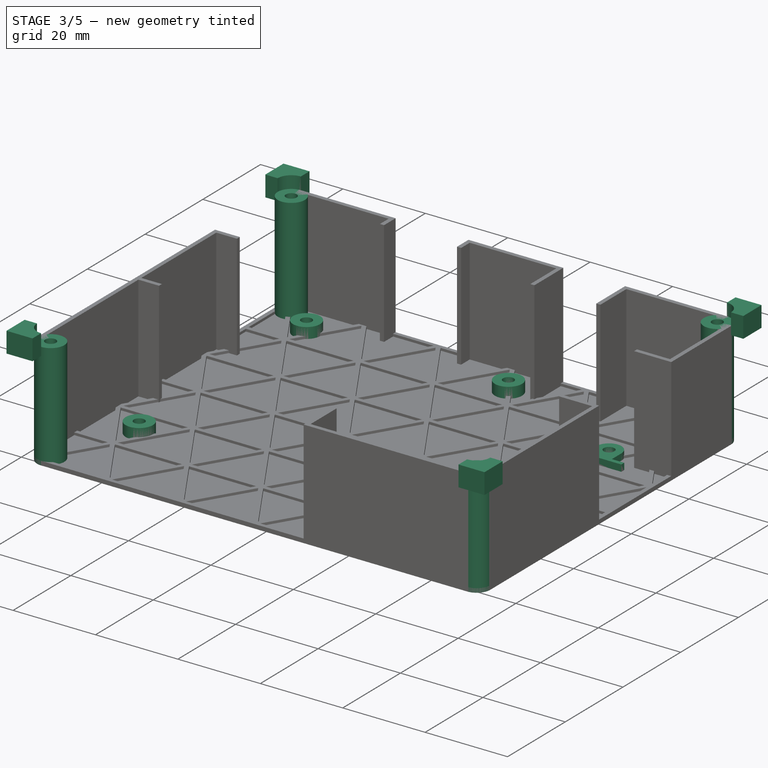
[diagram: stage 3 of 5 — iso view after this stage's code; geometry added in this stage tinted green]
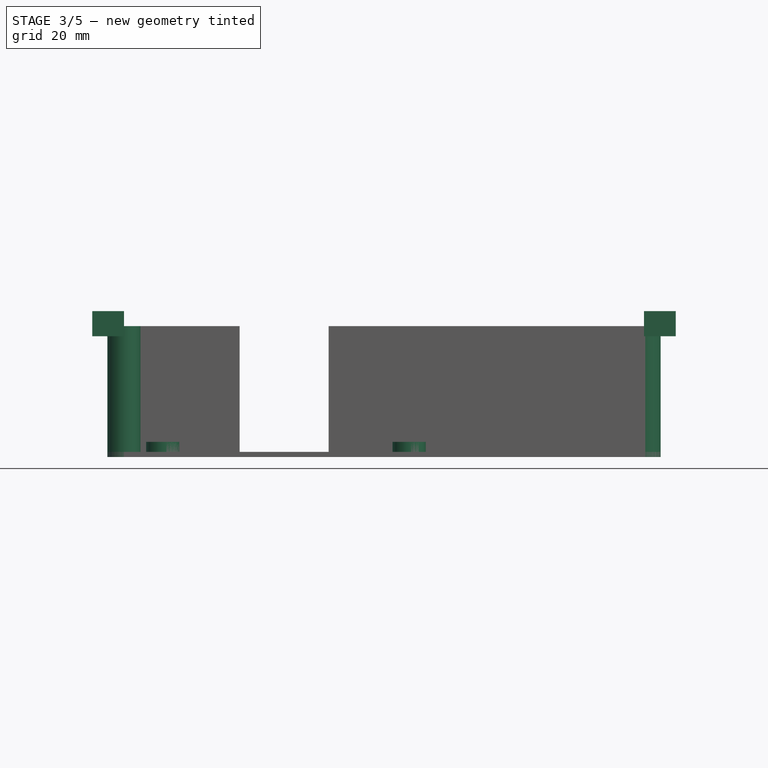
[diagram: stage 3 of 5 — front view after this stage's code; geometry added in this stage tinted green]
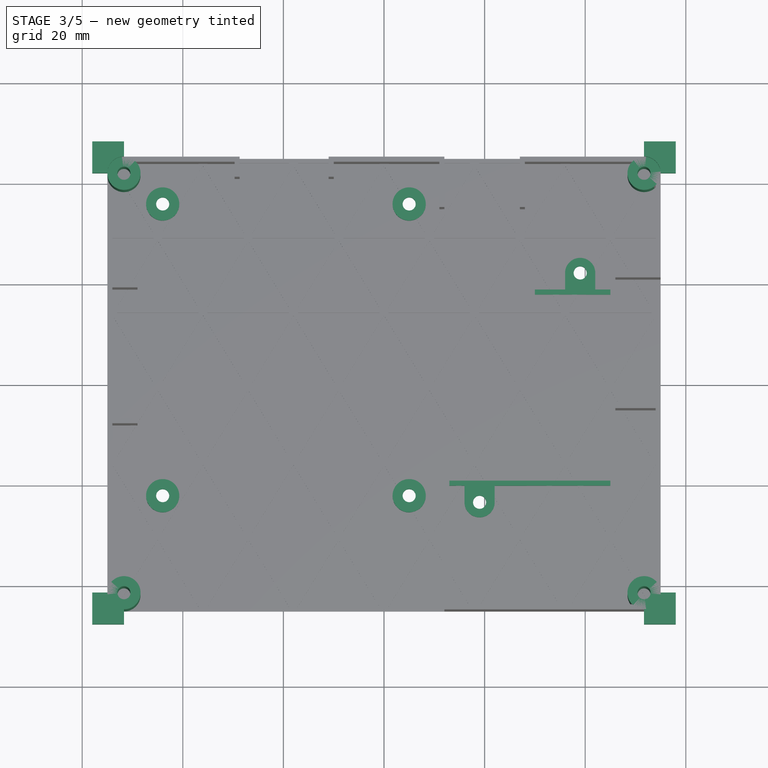
[diagram: stage 3 of 5 — top view after this stage's code; geometry added in this stage tinted green]
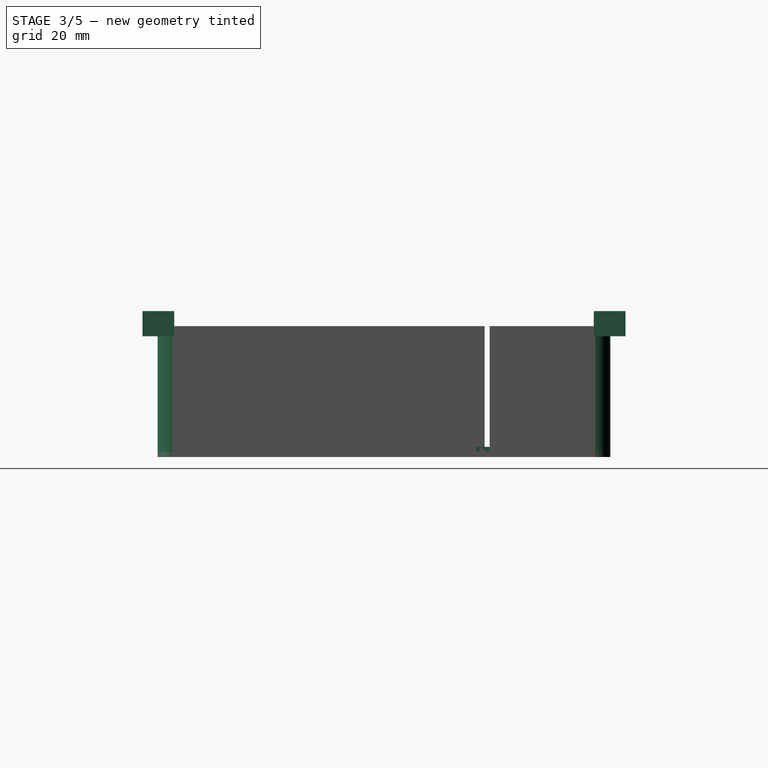
[diagram: stage 3 of 5 — right view after this stage's code; geometry added in this stage tinted green]
FEATURE [Sketcher::SketchObject] Sketch001
  FullyConstrained = true
  Placement = pos=(0,0,1) rot=(0,0,1;0rad)
  expr: Constraints[1] = Spreadsheet.m2_6_r3
  expr: Constraints[2] = Spreadsheet.m2_6_r3 + 2
  sketch-geometry (8):
    g0: Circle CenterX=-44 CenterY=36 CenterZ=0 NormalX=0 NormalY=0 NormalZ=1 AngleXU=0 Radius=1.3
    g1: Circle CenterX=-44 CenterY=36 CenterZ=0 NormalX=0 NormalY=0 NormalZ=1 AngleXU=0 Radius=3.3
    g2: Circle CenterX=5 CenterY=36 CenterZ=0 NormalX=0 NormalY=0 NormalZ=1 AngleXU=0 Radius=1.3
    g3: Circle CenterX=5 CenterY=36 CenterZ=0 NormalX=0 NormalY=0 NormalZ=1 AngleXU=0 Radius=3.3
    g4: Circle CenterX=-44 CenterY=-22 CenterZ=0 NormalX=0 NormalY=0 NormalZ=1 AngleXU=0 Radius=1.3
    g5: Circle CenterX=-44 CenterY=-22 CenterZ=0 NormalX=0 NormalY=0 NormalZ=1 AngleXU=0 Radius=3.3
    g6: Circle CenterX=5 CenterY=-22 CenterZ=0 NormalX=0 NormalY=0 NormalZ=1 AngleXU=0 Radius=1.3
    g7: Circle CenterX=5 CenterY=-22 CenterZ=0 NormalX=0 NormalY=0 NormalZ=1 AngleXU=0 Radius=3.3
  constraints (20):
    c: Coincident(g1,g0)
    c: Radius(g0) = 1.3
    c: Radius(g1) = 3.3
    c: Coincident(g3,g2)
    c: Equal(g0,g2) = 1.3
    c: Equal(g1,g3) = 3.3
    c: Coincident(g5,g4)
    c: Equal(g0,g4) = 1.3
    c: Equal(g1,g5) = 3.3
    c: Coincident(g7,g6)
    c: Equal(g0,g6) = 1.3
    c: Equal(g1,g7) = 3.3
    c: Horizontal(g0,g2)
    c: Vertical(g0,g4)
    c: Horizontal(g6,g4)
    c: Vertical(g2,g6)
    c: DistanceY(g4,g0) = 58
    c: DistanceX(g0,g2) = 49
    c: DistanceY(g6) = -22
    c: DistanceX(g0) = -44
FEATURE [Spreadsheet::Sheet] Spreadsheet
  cells = A1=m2_6_r1; B1(m2_6_r1)=2.6; A2=m2_6_r2; B2(m2_6_r2)=1.6; A3=m2_6_r3; B3(m2_6_r3)=1.3; A5=e2_56_r1; B5=1.3
FEATURE [Part::Extrusion] Extrude001
  Base = -> Sketch001
  Dir = (0,0,1)
  DirMode = 2
  FaceMakerClass = Part::FaceMakerBullseye
  LengthFwd = 3
  LengthRev = 0
  Placement = pos=(0,0,-1) rot=(0,0,1;0rad)
  Solid = true
  Symmetric = false
FEATURE [Sketcher::SketchObject] Sketch002
  FullyConstrained = true
  Placement = pos=(0,0,3) rot=(0,0,1;0rad)
  expr: Constraints[0] = Spreadsheet.m2_6_r3
  expr: Constraints[1] = Spreadsheet.m2_6_r3
  sketch-geometry (18):
    g0: Circle CenterX=19 CenterY=-23.3 CenterZ=0 NormalX=0 NormalY=0 NormalZ=1 AngleXU=0 Radius=1.3
    g1: Circle CenterX=39 CenterY=22.3 CenterZ=0 NormalX=0 NormalY=0 NormalZ=1 AngleXU=0 Radius=1.3
    g2: LineSegment StartX=30 StartY=19 StartZ=0 EndX=30 EndY=18 EndZ=0
    g3: LineSegment StartX=30 StartY=18 StartZ=0 EndX=45 EndY=18 EndZ=0
    g4: LineSegment StartX=45 StartY=18 StartZ=0 EndX=45 EndY=19 EndZ=0
    g5: LineSegment StartX=13 StartY=-19 StartZ=0 EndX=45 EndY=-19 EndZ=0
    g6: LineSegment StartX=45 StartY=-19 StartZ=0 EndX=45 EndY=-20 EndZ=0
    g7: LineSegment StartX=45 StartY=-20 StartZ=0 EndX=22 EndY=-20 EndZ=0
    g8: LineSegment StartX=22 StartY=-20 StartZ=0 EndX=22 EndY=-23.3 EndZ=0
    g9: LineSegment StartX=16 StartY=-23.3 StartZ=0 EndX=16 EndY=-20 EndZ=0
    g10: LineSegment StartX=16 StartY=-20 StartZ=0 EndX=13 EndY=-20 EndZ=0
    g11: LineSegment StartX=13 StartY=-20 StartZ=0 EndX=13 EndY=-19 EndZ=0
    g12: ArcOfCircle CenterX=19 CenterY=-23.3 CenterZ=0 NormalX=0 NormalY=0 NormalZ=1 AngleXU=0 Radius=3 StartAngle=3.14159 EndAngle=6.28319
    g13: ArcOfCircle CenterX=39 CenterY=22.3 CenterZ=0 NormalX=0 NormalY=0 NormalZ=1 AngleXU=0 Radius=3 StartAngle=0 EndAngle=3.14159
    g14: LineSegment StartX=30 StartY=19 StartZ=0 EndX=36 EndY=19 EndZ=0
    g15: LineSegment StartX=45 StartY=19 StartZ=0 EndX=42 EndY=19 EndZ=0
    g16: LineSegment StartX=36 StartY=19 StartZ=0 EndX=36 EndY=22.3 EndZ=0
    g17: LineSegment StartX=42 StartY=19 StartZ=0 EndX=42 EndY=22.3 EndZ=0
  constraints (54):
    c: Radius(g1) = 1.3
    c: Radius(g0) = 1.3
    c: DistanceY(g1) = 22.3
    c: DistanceY(g0) = -23.3
    c: DistanceX(g1) = 39
    c: DistanceX(g0) = 19
    c: Coincident(g2,g3)
    c: Coincident(g3,g4)
    c: Horizontal(g3)
    c: Vertical(g2)
    c: Vertical(g4)
    c: Horizontal(g5)
    c: Coincident(g5,g6)
    c: Vertical(g6)
    c: Coincident(g6,g7)
    c: Horizontal(g7)
    c: Coincident(g7,g8)
    c: Vertical(g8)
    c: Vertical(g9)
    c: Coincident(g9,g10)
    c: Horizontal(g10)
    c: Coincident(g10,g11)
    c: Coincident(g11,g5)
    c: Vertical(g11)
    c: Coincident(g12,g0)
    c: Coincident(g12,g9)
    c: Coincident(g12,g8)
    c: Horizontal(g9,g0)
    c: Horizontal(g0,g8)
    c: Coincident(g13,g1)
    c: Coincident(g14,g2)
    c: Horizontal(g14)
    c: Coincident(g15,g4)
    c: Horizontal(g15)
    c: Horizontal(g13,g1)
    c: Horizontal(g1,g13)
    c: Coincident(g16,g14)
    c: Coincident(g16,g13)
    c: Vertical(g16)
    c: Coincident(g17,g15)
    c: Coincident(g17,g13)
    c: Vertical(g17)
    c: DistanceX(g3,g3) = 15
    c: DistanceY(g2,g2) = 1
    c: Horizontal(g15,g14)
    c: DistanceX(g14,g14) = 6
    c: DistanceX(g15,g15) = 3
    c: DistanceY(g17,g17) = 3.3
    c: DistanceY(g9,g9) = 3.3
    c: Horizontal(g7,g9)
    c: DistanceX(g10,g10) = 3
    c: DistanceY(g11,g11) = 1
    c: DistanceX(g5,g5) = 32
    c: DistanceX(g7,g7) = 23
FEATURE [Part::Extrusion] Extrude002
  Base = -> Sketch002
  Dir = (0,0,1)
  DirMode = 2
  FaceMakerClass = Part::FaceMakerBullseye
  LengthFwd = 2
  LengthRev = 0
  Placement = pos=(0,0,-3) rot=(0,0,1;0rad)
  Solid = true
  Symmetric = false
FEATURE [Sketcher::SketchObject] Sketch004
  FullyConstrained = true
  Placement = pos=(0,0,1) rot=(0,0,1;0rad)
  expr: Constraints[0] = Spreadsheet.m2_6_r3
  expr: Constraints[2] = Spreadsheet.m2_6_r3 + 2
  sketch-geometry (8):
    g0: Circle CenterX=-51.7 CenterY=-41.7 CenterZ=0 NormalX=0 NormalY=0 NormalZ=1 AngleXU=0 Radius=1.3
    g1: Circle CenterX=-51.7 CenterY=-41.7 CenterZ=0 NormalX=0 NormalY=0 NormalZ=1 AngleXU=0 Radius=3.3
    g2: Circle CenterX=-51.7 CenterY=41.7 CenterZ=0 NormalX=0 NormalY=0 NormalZ=1 AngleXU=0 Radius=1.3
    g3: Circle CenterX=-51.7 CenterY=41.7 CenterZ=0 NormalX=0 NormalY=0 NormalZ=1 AngleXU=0 Radius=3.3
    g4: Circle CenterX=51.7 CenterY=-41.7 CenterZ=0 NormalX=0 NormalY=0 NormalZ=1 AngleXU=0 Radius=1.3
    g5: Circle CenterX=51.7 CenterY=-41.7 CenterZ=0 NormalX=0 NormalY=0 NormalZ=1 AngleXU=0 Radius=3.3
    g6: Circle CenterX=51.7 CenterY=41.7 CenterZ=0 NormalX=0 NormalY=0 NormalZ=1 AngleXU=0 Radius=1.3
    g7: Circle CenterX=51.7 CenterY=41.7 CenterZ=0 NormalX=0 NormalY=0 NormalZ=1 AngleXU=0 Radius=3.3
  constraints (20):
    c: Radius(g0) = 1.3
    c: Coincident(g1,g0)
    c: Radius(g1) = 3.3
    c: DistanceY(g0) = -41.7
    c: DistanceX(g0) = -51.7
    c: Equal(g0,g2) = 1.3
    c: Coincident(g3,g2)
    c: Equal(g1,g3) = 3.3
    c: DistanceY(g2) = 41.7
    c: Vertical(g2,g0)
    c: Equal(g0,g4) = 1.3
    c: Coincident(g5,g4)
    c: Equal(g1,g5) = 3.3
    c: Equal(g0,g6) = 1.3
    c: Coincident(g7,g6)
    c: Equal(g1,g7) = 3.3
    c: Horizontal(g6,g2)
    c: Horizontal(g4,g0)
    c: Vertical(g4,g6)
    c: DistanceX(g6) = 51.7
FEATURE [Part::Extrusion] Extrude004
  Base = -> Sketch004
  Dir = (0,0,1)
  DirMode = 2
  FaceMakerClass = Part::FaceMakerBullseye
  LengthFwd = 26
  LengthRev = 0
  Placement = pos=(0,0,-1) rot=(0,0,1;0rad)
  Solid = true
  Symmetric = false
FEATURE [PartDesign::FeatureBase] Clone
  BaseFeature = -> Extrude010
FEATURE [Part::Compound] Compound  label="bottom"
  Links = -> [Extrude001,Extrude002,Extrude004,Extrude005,Cut001]
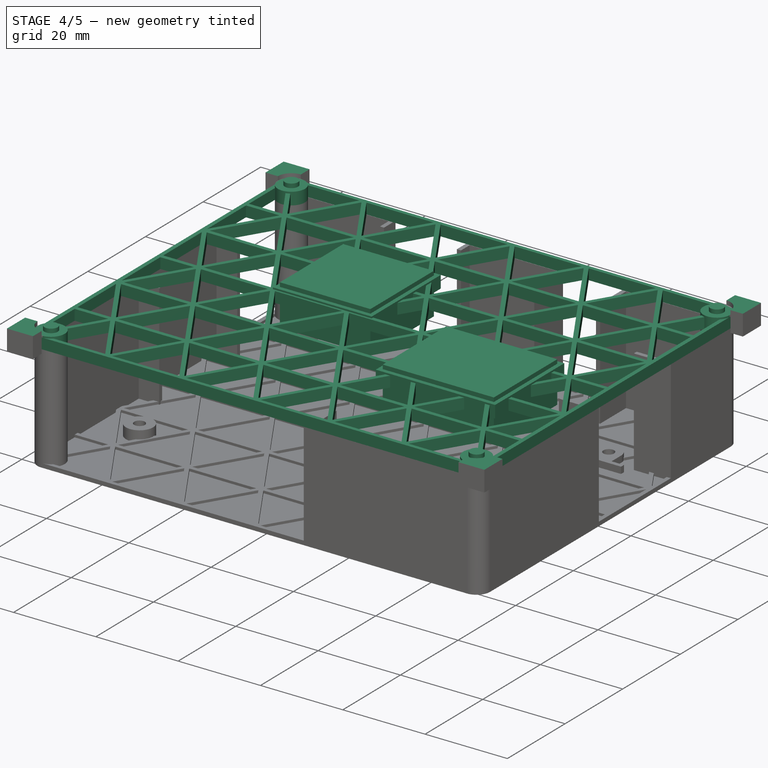
[diagram: stage 4 of 5 — iso view after this stage's code; geometry added in this stage tinted green]
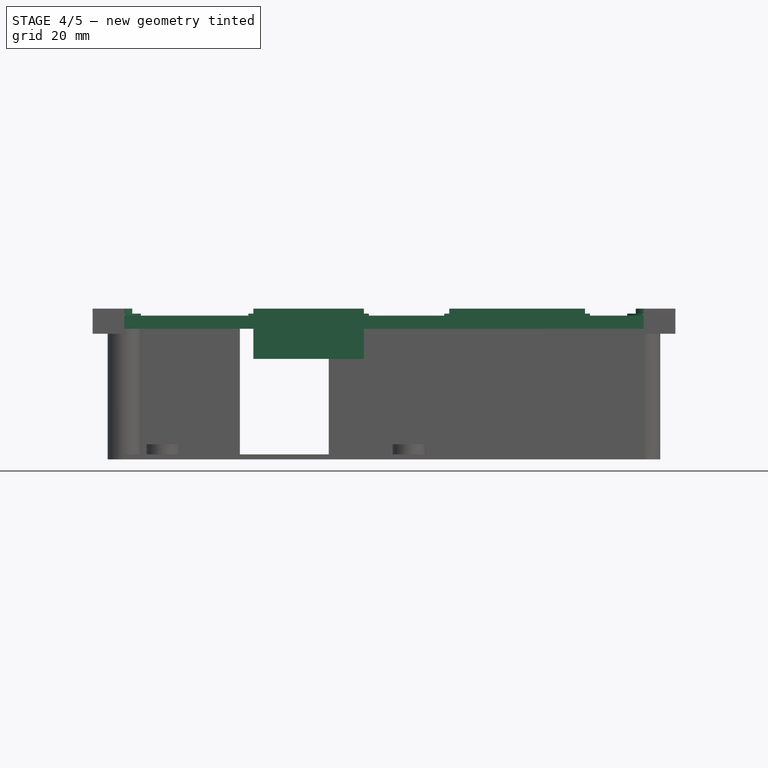
[diagram: stage 4 of 5 — front view after this stage's code; geometry added in this stage tinted green]
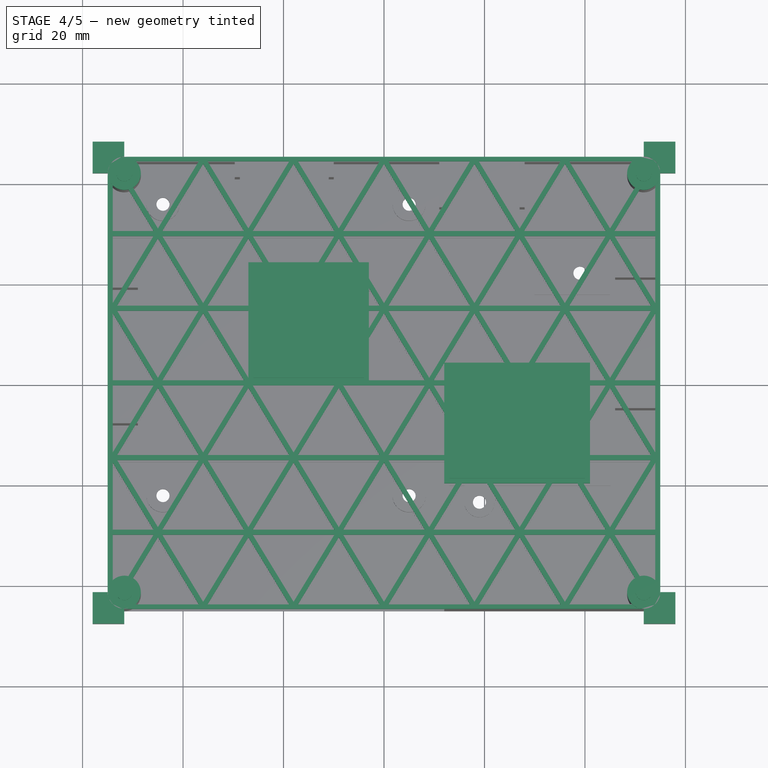
[diagram: stage 4 of 5 — top view after this stage's code; geometry added in this stage tinted green]
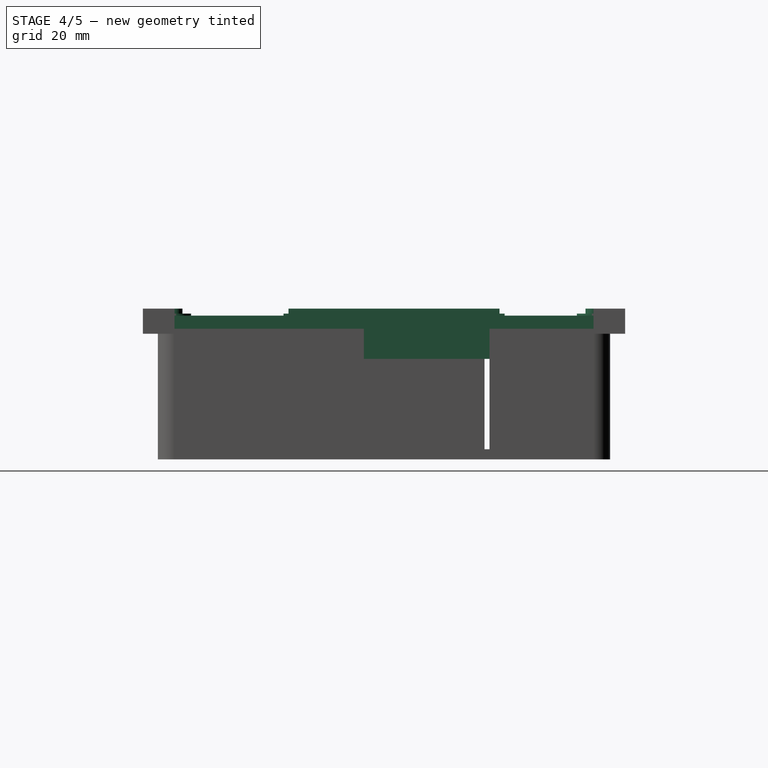
[diagram: stage 4 of 5 — right view after this stage's code; geometry added in this stage tinted green]
FEATURE [Sketcher::SketchObject] gridsketch001
  FullyConstrained = false
  Placement = pos=(0,0,20) rot=(0,0,1;0rad)
  sketch-geometry (238):
    g0: LineSegment StartX=1.4 StartY=1 StartZ=0 EndX=14.7667 EndY=1 EndZ=0
    g1: LineSegment StartX=14.7667 StartY=1 StartZ=0 EndX=14.7667 EndY=9.13397 EndZ=0
    g2: LineSegment StartX=14.7667 StartY=9.13397 StartZ=0 EndX=1.4 EndY=1 EndZ=0
    g3: LineSegment StartX=1.4 StartY=109 StartZ=0 EndX=14.7667 EndY=109 EndZ=0
    g4: LineSegment StartX=14.7667 StartY=109 StartZ=0 EndX=14.7667 EndY=100.866 EndZ=0
    g5: LineSegment StartX=14.7667 StartY=100.866 StartZ=0 EndX=1.4 EndY=109 EndZ=0
    g6: LineSegment StartX=29.1333 StartY=1 StartZ=0 EndX=15.7667 EndY=1 EndZ=0
    g7: LineSegment StartX=15.7667 StartY=1 StartZ=0 EndX=15.7667 EndY=9.13397 EndZ=0
    g8: LineSegment StartX=15.7667 StartY=9.13397 StartZ=0 EndX=29.1333 EndY=1 EndZ=0
    g9: LineSegment StartX=29.1333 StartY=109 StartZ=0 EndX=15.7667 EndY=109 EndZ=0
    g10: LineSegment StartX=15.7667 StartY=109 StartZ=0 EndX=15.7667 EndY=100.866 EndZ=0
    g11: LineSegment StartX=15.7667 StartY=100.866 StartZ=0 EndX=29.1333 EndY=109 EndZ=0
    g12: LineSegment StartX=31.1333 StartY=1 StartZ=0 EndX=44.5 EndY=1 EndZ=0
    g13: LineSegment StartX=44.5 StartY=1 StartZ=0 EndX=44.5 EndY=9.13397 EndZ=0
    g14: LineSegment StartX=44.5 StartY=9.13397 StartZ=0 EndX=31.1333 EndY=1 EndZ=0
    g15: LineSegment StartX=31.1333 StartY=109 StartZ=0 EndX=44.5 EndY=109 EndZ=0
    g16: LineSegment StartX=44.5 StartY=109 StartZ=0 EndX=44.5 EndY=100.866 EndZ=0
    g17: LineSegment StartX=44.5 StartY=100.866 StartZ=0 EndX=31.1333 EndY=109 EndZ=0
    g18: LineSegment StartX=58.8667 StartY=1 StartZ=0 EndX=45.5 EndY=1 EndZ=0
    g19: LineSegment StartX=45.5 StartY=1 StartZ=0 EndX=45.5 EndY=9.13397 EndZ=0
    g20: LineSegment StartX=45.5 StartY=9.13397 StartZ=0 EndX=58.8667 EndY=1 EndZ=0
    g21: LineSegment StartX=58.8667 StartY=109 StartZ=0 EndX=45.5 EndY=109 EndZ=0
    g22: LineSegment StartX=45.5 StartY=109 StartZ=0 EndX=45.5 EndY=100.866 EndZ=0
    g23: LineSegment StartX=45.5 StartY=100.866 StartZ=0 EndX=58.8667 EndY=109 EndZ=0
    g24: LineSegment StartX=60.8667 StartY=1 StartZ=0 EndX=74.2333 EndY=1 EndZ=0
    g25: LineSegment StartX=74.2333 StartY=1 StartZ=0 EndX=74.2333 EndY=9.13397 EndZ=0
    g26: LineSegment StartX=74.2333 StartY=9.13397 StartZ=0 EndX=60.8667 EndY=1 EndZ=0
    g27: LineSegment StartX=60.8667 StartY=109 StartZ=0 EndX=74.2333 EndY=109 EndZ=0
    g28: LineSegment StartX=74.2333 StartY=109 StartZ=0 EndX=74.2333 EndY=100.866 EndZ=0
    g29: LineSegment StartX=74.2333 StartY=100.866 StartZ=0 EndX=60.8667 EndY=109 EndZ=0
    g30: LineSegment StartX=88.6 StartY=1 StartZ=0 EndX=75.2333 EndY=1 EndZ=0
    g31: LineSegment StartX=75.2333 StartY=1 StartZ=0 EndX=75.2333 EndY=9.13397 EndZ=0
    g32: LineSegment StartX=75.2333 StartY=9.13397 StartZ=0 EndX=88.6 EndY=1 EndZ=0
    g33: LineSegment StartX=88.6 StartY=109 StartZ=0 EndX=75.2333 EndY=109 EndZ=0
    g34: LineSegment StartX=75.2333 StartY=109 StartZ=0 EndX=75.2333 EndY=100.866 EndZ=0
    g35: LineSegment StartX=75.2333 StartY=100.866 StartZ=0 EndX=88.6 EndY=109 EndZ=0
    g36: LineSegment StartX=0.9 StartY=1.86603 StartZ=0 EndX=0.9 EndY=18.134 EndZ=0
    g37: LineSegment StartX=0.9 StartY=18.134 StartZ=0 EndX=14.2667 EndY=10 EndZ=0
    g38: LineSegment StartX=14.2667 StartY=10 StartZ=0 EndX=0.9 EndY=1.86603 EndZ=0
    g39: LineSegment StartX=14.7667 StartY=10.866 StartZ=0 EndX=14.7667 EndY=27.134 EndZ=0
    g40: LineSegment StartX=14.7667 StartY=27.134 StartZ=0 EndX=1.4 EndY=19 EndZ=0
    g41: LineSegment StartX=1.4 StartY=19 StartZ=0 EndX=14.7667 EndY=10.866 EndZ=0
    g42: LineSegment StartX=29.6333 StartY=1.86603 StartZ=0 EndX=29.6333 EndY=18.134 EndZ=0
    g43: LineSegment StartX=29.6333 StartY=18.134 StartZ=0 EndX=16.2667 EndY=10 EndZ=0
    g44: LineSegment StartX=16.2667 StartY=10 StartZ=0 EndX=29.6333 EndY=1.86603 EndZ=0
    g45: LineSegment StartX=15.7667 StartY=10.866 StartZ=0 EndX=15.7667 EndY=27.134 EndZ=0
    g46: LineSegment StartX=15.7667 StartY=27.134 StartZ=0 EndX=29.1333 EndY=19 EndZ=0
    g47: LineSegment StartX=29.1333 StartY=19 StartZ=0 EndX=15.7667 EndY=10.866 EndZ=0
    g48: LineSegment StartX=30.6333 StartY=1.86603 StartZ=0 EndX=30.6333 EndY=18.134 EndZ=0
    g49: LineSegment StartX=30.6333 StartY=18.134 StartZ=0 EndX=44 EndY=10 EndZ=0
    g50: LineSegment StartX=44 StartY=10 StartZ=0 EndX=30.6333 EndY=1.86603 EndZ=0
    g51: LineSegment StartX=44.5 StartY=10.866 StartZ=0 EndX=44.5 EndY=27.134 EndZ=0
    g52: LineSegment StartX=44.5 StartY=27.134 StartZ=0 EndX=31.1333 EndY=19 EndZ=0
    g53: LineSegment StartX=31.1333 StartY=19 StartZ=0 EndX=44.5 EndY=10.866 EndZ=0
    g54: LineSegment StartX=59.3667 StartY=1.86603 StartZ=0 EndX=59.3667 EndY=18.134 EndZ=0
    g55: LineSegment StartX=59.3667 StartY=18.134 StartZ=0 EndX=46 EndY=10 EndZ=0
    g56: LineSegment StartX=46 StartY=10 StartZ=0 EndX=59.3667 EndY=1.86603 EndZ=0
    g57: LineSegment StartX=45.5 StartY=10.866 StartZ=0 EndX=45.5 EndY=27.134 EndZ=0
    g58: LineSegment StartX=45.5 StartY=27.134 StartZ=0 EndX=58.8667 EndY=19 EndZ=0
    g59: LineSegment StartX=58.8667 StartY=19 StartZ=0 EndX=45.5 EndY=10.866 EndZ=0
    g60: LineSegment StartX=60.3667 StartY=1.86603 StartZ=0 EndX=60.3667 EndY=18.134 EndZ=0
    g61: LineSegment StartX=60.3667 StartY=18.134 StartZ=0 EndX=73.7333 EndY=10 EndZ=0
    g62: LineSegment StartX=73.7333 StartY=10 StartZ=0 EndX=60.3667 EndY=1.86603 EndZ=0
    g63: LineSegment StartX=74.2333 StartY=10.866 StartZ=0 EndX=74.2333 EndY=27.134 EndZ=0
    g64: LineSegment StartX=74.2333 StartY=27.134 StartZ=0 EndX=60.8667 EndY=19 EndZ=0
    g65: LineSegment StartX=60.8667 StartY=19 StartZ=0 EndX=74.2333 EndY=10.866 EndZ=0
    g66: LineSegment StartX=89.1 StartY=1.86603 StartZ=0 EndX=89.1 EndY=18.134 EndZ=0
    g67: LineSegment StartX=89.1 StartY=18.134 StartZ=0 EndX=75.7333 EndY=10 EndZ=0
    g68: LineSegment StartX=75.7333 StartY=10 StartZ=0 EndX=89.1 EndY=1.86603 EndZ=0
    g69: LineSegment StartX=75.2333 StartY=10.866 StartZ=0 EndX=75.2333 EndY=27.134 EndZ=0
    g70: LineSegment StartX=75.2333 StartY=27.134 StartZ=0 EndX=88.6 EndY=19 EndZ=0
    g71: LineSegment StartX=88.6 StartY=19 StartZ=0 EndX=75.2333 EndY=10.866 EndZ=0
    g72: LineSegment StartX=0.9 StartY=19.866 StartZ=0 EndX=0.9 EndY=36.134 EndZ=0
    g73: LineSegment StartX=0.9 StartY=36.134 StartZ=0 EndX=14.2667 EndY=28 EndZ=0
    g74: LineSegment StartX=14.2667 StartY=28 StartZ=0 EndX=0.9 EndY=19.866 EndZ=0
    g75: LineSegment StartX=14.7667 StartY=28.866 StartZ=0 EndX=14.7667 EndY=45.134 EndZ=0
    g76: LineSegment StartX=14.7667 StartY=45.134 StartZ=0 EndX=1.4 EndY=37 EndZ=0
    g77: LineSegment StartX=1.4 StartY=37 StartZ=0 EndX=14.7667 EndY=28.866 EndZ=0
    g78: LineSegment StartX=29.6333 StartY=19.866 StartZ=0 EndX=29.6333 EndY=36.134 EndZ=0
    g79: LineSegment StartX=29.6333 StartY=36.134 StartZ=0 EndX=16.2667 EndY=28 EndZ=0
    g80: LineSegment StartX=16.2667 StartY=28 StartZ=0 EndX=29.6333 EndY=19.866 EndZ=0
    g81: LineSegment StartX=15.7667 StartY=28.866 StartZ=0 EndX=15.7667 EndY=45.134 EndZ=0
    g82: LineSegment StartX=15.7667 StartY=45.134 StartZ=0 EndX=29.1333 EndY=37 EndZ=0
    g83: LineSegment StartX=29.1333 StartY=37 StartZ=0 EndX=15.7667 EndY=28.866 EndZ=0
    g84: LineSegment StartX=30.6333 StartY=19.866 StartZ=0 EndX=30.6333 EndY=36.134 EndZ=0
    g85: LineSegment StartX=30.6333 StartY=36.134 StartZ=0 EndX=44 EndY=28 EndZ=0
    g86: LineSegment StartX=44 StartY=28 StartZ=0 EndX=30.6333 EndY=19.866 EndZ=0
    g87: LineSegment StartX=44.5 StartY=28.866 StartZ=0 EndX=44.5 EndY=45.134 EndZ=0
    g88: LineSegment StartX=44.5 StartY=45.134 StartZ=0 EndX=31.1333 EndY=37 EndZ=0
    g89: LineSegment StartX=31.1333 StartY=37 StartZ=0 EndX=44.5 EndY=28.866 EndZ=0
    g90: LineSegment StartX=59.3667 StartY=19.866 StartZ=0 EndX=59.3667 EndY=36.134 EndZ=0
    g91: LineSegment StartX=59.3667 StartY=36.134 StartZ=0 EndX=46 EndY=28 EndZ=0
    g92: LineSegment StartX=46 StartY=28 StartZ=0 EndX=59.3667 EndY=19.866 EndZ=0
    g93: LineSegment StartX=45.5 StartY=28.866 StartZ=0 EndX=45.5 EndY=45.134 EndZ=0
    g94: LineSegment StartX=45.5 StartY=45.134 StartZ=0 EndX=58.8667 EndY=37 EndZ=0
    g95: LineSegment StartX=58.8667 StartY=37 StartZ=0 EndX=45.5 EndY=28.866 EndZ=0
    g96: LineSegment StartX=60.3667 StartY=19.866 StartZ=0 EndX=60.3667 EndY=36.134 EndZ=0
    g97: LineSegment StartX=60.3667 StartY=36.134 StartZ=0 EndX=73.7333 EndY=28 EndZ=0
    g98: LineSegment StartX=73.7333 StartY=28 StartZ=0 EndX=60.3667 EndY=19.866 EndZ=0
    g99: LineSegment StartX=74.2333 StartY=28.866 StartZ=0 EndX=74.2333 EndY=45.134 EndZ=0
    g100: LineSegment StartX=74.2333 StartY=45.134 StartZ=0 EndX=60.8667 EndY=37 EndZ=0
    g101: LineSegment StartX=60.8667 StartY=37 StartZ=0 EndX=74.2333 EndY=28.866 EndZ=0
    g102: LineSegment StartX=89.1 StartY=19.866 StartZ=0 EndX=89.1 EndY=36.134 EndZ=0
    g103: LineSegment StartX=89.1 StartY=36.134 StartZ=0 EndX=75.7333 EndY=28 EndZ=0
    g104: LineSegment StartX=75.7333 StartY=28 StartZ=0 EndX=89.1 EndY=19.866 EndZ=0
    g105: LineSegment StartX=75.2333 StartY=28.866 StartZ=0 EndX=75.2333 EndY=45.134 EndZ=0
    g106: LineSegment StartX=75.2333 StartY=45.134 StartZ=0 EndX=88.6 EndY=37 EndZ=0
    g107: LineSegment StartX=88.6 StartY=37 StartZ=0 EndX=75.2333 EndY=28.866 EndZ=0
    g108: LineSegment StartX=0.9 StartY=37.866 StartZ=0 EndX=0.9 EndY=54.134 EndZ=0
    g109: LineSegment StartX=0.9 StartY=54.134 StartZ=0 EndX=14.2667 EndY=46 EndZ=0
    g110: LineSegment StartX=14.2667 StartY=46 StartZ=0 EndX=0.9 EndY=37.866 EndZ=0
    g111: LineSegment StartX=14.7667 StartY=46.866 StartZ=0 EndX=14.7667 EndY=63.134 EndZ=0
    g112: LineSegment StartX=14.7667 StartY=63.134 StartZ=0 EndX=1.4 EndY=55 EndZ=0
    g113: LineSegment StartX=1.4 StartY=55 StartZ=0 EndX=14.7667 EndY=46.866 EndZ=0
    g114: LineSegment StartX=29.6333 StartY=37.866 StartZ=0 EndX=29.6333 EndY=54.134 EndZ=0
    g115: LineSegment StartX=29.6333 StartY=54.134 StartZ=0 EndX=16.2667 EndY=46 EndZ=0
    g116: LineSegment StartX=16.2667 StartY=46 StartZ=0 EndX=29.6333 EndY=37.866 EndZ=0
    g117: LineSegment StartX=15.7667 StartY=46.866 StartZ=0 EndX=15.7667 EndY=63.134 EndZ=0
    g118: LineSegment StartX=15.7667 StartY=63.134 StartZ=0 EndX=29.1333 EndY=55 EndZ=0
    g119: LineSegment StartX=29.1333 StartY=55 StartZ=0 EndX=15.7667 EndY=46.866 EndZ=0
    g120: LineSegment StartX=30.6333 StartY=37.866 StartZ=0 EndX=30.6333 EndY=54.134 EndZ=0
    g121: LineSegment StartX=30.6333 StartY=54.134 StartZ=0 EndX=44 EndY=46 EndZ=0
    g122: LineSegment StartX=44 StartY=46 StartZ=0 EndX=30.6333 EndY=37.866 EndZ=0
    g123: LineSegment StartX=44.5 StartY=46.866 StartZ=0 EndX=44.5 EndY=63.134 EndZ=0
    g124: LineSegment StartX=44.5 StartY=63.134 StartZ=0 EndX=31.1333 EndY=55 EndZ=0
    g125: LineSegment StartX=31.1333 StartY=55 StartZ=0 EndX=44.5 EndY=46.866 EndZ=0
    g126: LineSegment StartX=59.3667 StartY=37.866 StartZ=0 EndX=59.3667 EndY=54.134 EndZ=0
    g127: LineSegment StartX=59.3667 StartY=54.134 StartZ=0 EndX=46 EndY=46 EndZ=0
    g128: LineSegment StartX=46 StartY=46 StartZ=0 EndX=59.3667 EndY=37.866 EndZ=0
    g129: LineSegment StartX=45.5 StartY=46.866 StartZ=0 EndX=45.5 EndY=63.134 EndZ=0
    g130: LineSegment StartX=45.5 StartY=63.134 StartZ=0 EndX=58.8667 EndY=55 EndZ=0
    g131: LineSegment StartX=58.8667 StartY=55 StartZ=0 EndX=45.5 EndY=46.866 EndZ=0
    g132: LineSegment StartX=60.3667 StartY=37.866 StartZ=0 EndX=60.3667 EndY=54.134 EndZ=0
    g133: LineSegment StartX=60.3667 StartY=54.134 StartZ=0 EndX=73.7333 EndY=46 EndZ=0
    g134: LineSegment StartX=73.7333 StartY=46 StartZ=0 EndX=60.3667 EndY=37.866 EndZ=0
    g135: LineSegment StartX=74.2333 StartY=46.866 StartZ=0 EndX=74.2333 EndY=63.134 EndZ=0
    g136: LineSegment StartX=74.2333 StartY=63.134 StartZ=0 EndX=60.8667 EndY=55 EndZ=0
    g137: LineSegment StartX=60.8667 StartY=55 StartZ=0 EndX=74.2333 EndY=46.866 EndZ=0
    g138: LineSegment StartX=89.1 StartY=37.866 StartZ=0 EndX=89.1 EndY=54.134 EndZ=0
    g139: LineSegment StartX=89.1 StartY=54.134 StartZ=0 EndX=75.7333 EndY=46 EndZ=0
    g140: LineSegment StartX=75.7333 StartY=46 StartZ=0 EndX=89.1 EndY=37.866 EndZ=0
    g141: LineSegment StartX=75.2333 StartY=46.866 StartZ=0 EndX=75.2333 EndY=63.134 EndZ=0
    g142: LineSegment StartX=75.2333 StartY=63.134 StartZ=0 EndX=88.6 EndY=55 EndZ=0
    g143: LineSegment StartX=88.6 StartY=55 StartZ=0 EndX=75.2333 EndY=46.866 EndZ=0
    g144: LineSegment StartX=0.9 StartY=55.866 StartZ=0 EndX=0.9 EndY=72.134 EndZ=0
    g145: LineSegment StartX=0.9 StartY=72.134 StartZ=0 EndX=14.2667 EndY=64 EndZ=0
    g146: LineSegment StartX=14.2667 StartY=64 StartZ=0 EndX=0.9 EndY=55.866 EndZ=0
    g147: LineSegment StartX=14.7667 StartY=64.866 StartZ=0 EndX=14.7667 EndY=81.134 EndZ=0
    g148: LineSegment StartX=14.7667 StartY=81.134 StartZ=0 EndX=1.4 EndY=73 EndZ=0
    g149: LineSegment StartX=1.4 StartY=73 StartZ=0 EndX=14.7667 EndY=64.866 EndZ=0
    g150: LineSegment StartX=29.6333 StartY=55.866 StartZ=0 EndX=29.6333 EndY=72.134 EndZ=0
    g151: LineSegment StartX=29.6333 StartY=72.134 StartZ=0 EndX=16.2667 EndY=64 EndZ=0
    g152: LineSegment StartX=16.2667 StartY=64 StartZ=0 EndX=29.6333 EndY=55.866 EndZ=0
    g153: LineSegment StartX=15.7667 StartY=64.866 StartZ=0 EndX=15.7667 EndY=81.134 EndZ=0
    g154: LineSegment StartX=15.7667 StartY=81.134 StartZ=0 EndX=29.1333 EndY=73 EndZ=0
    g155: LineSegment StartX=29.1333 StartY=73 StartZ=0 EndX=15.7667 EndY=64.866 EndZ=0
    g156: LineSegment StartX=30.6333 StartY=55.866 StartZ=0 EndX=30.6333 EndY=72.134 EndZ=0
    g157: LineSegment StartX=30.6333 StartY=72.134 StartZ=0 EndX=44 EndY=64 EndZ=0
    g158: LineSegment StartX=44 StartY=64 StartZ=0 EndX=30.6333 EndY=55.866 EndZ=0
    g159: LineSegment StartX=44.5 StartY=64.866 StartZ=0 EndX=44.5 EndY=81.134 EndZ=0
    g160: LineSegment StartX=44.5 StartY=81.134 StartZ=0 EndX=31.1333 EndY=73 EndZ=0
    g161: LineSegment StartX=31.1333 StartY=73 StartZ=0 EndX=44.5 EndY=64.866 EndZ=0
    g162: LineSegment StartX=59.3667 StartY=55.866 StartZ=0 EndX=59.3667 EndY=72.134 EndZ=0
    g163: LineSegment StartX=59.3667 StartY=72.134 StartZ=0 EndX=46 EndY=64 EndZ=0
    g164: LineSegment StartX=46 StartY=64 StartZ=0 EndX=59.3667 EndY=55.866 EndZ=0
    g165: LineSegment StartX=45.5 StartY=64.866 StartZ=0 EndX=45.5 EndY=81.134 EndZ=0
    g166: LineSegment StartX=45.5 StartY=81.134 StartZ=0 EndX=58.8667 EndY=73 EndZ=0
    g167: LineSegment StartX=58.8667 StartY=73 StartZ=0 EndX=45.5 EndY=64.866 EndZ=0
    g168: LineSegment StartX=60.3667 StartY=55.866 StartZ=0 EndX=60.3667 EndY=72.134 EndZ=0
    g169: LineSegment StartX=60.3667 StartY=72.134 StartZ=0 EndX=73.7333 EndY=64 EndZ=0
    g170: LineSegment StartX=73.7333 StartY=64 StartZ=0 EndX=60.3667 EndY=55.866 EndZ=0
    g171: LineSegment StartX=74.2333 StartY=64.866 StartZ=0 EndX=74.2333 EndY=81.134 EndZ=0
    g172: LineSegment StartX=74.2333 StartY=81.134 StartZ=0 EndX=60.8667 EndY=73 EndZ=0
    g173: LineSegment StartX=60.8667 StartY=73 StartZ=0 EndX=74.2333 EndY=64.866 EndZ=0
    g174: LineSegment StartX=89.1 StartY=55.866 StartZ=0 EndX=89.1 EndY=72.134 EndZ=0
    g175: LineSegment StartX=89.1 StartY=72.134 StartZ=0 EndX=75.7333 EndY=64 EndZ=0
    g176: LineSegment StartX=75.7333 StartY=64 StartZ=0 EndX=89.1 EndY=55.866 EndZ=0
    g177: LineSegment StartX=75.2333 StartY=64.866 StartZ=0 EndX=75.2333 EndY=81.134 EndZ=0
    g178: LineSegment StartX=75.2333 StartY=81.134 StartZ=0 EndX=88.6 EndY=73 EndZ=0
    g179: LineSegment StartX=88.6 StartY=73 StartZ=0 EndX=75.2333 EndY=64.866 EndZ=0
    g180: LineSegment StartX=0.9 StartY=73.866 StartZ=0 EndX=0.9 EndY=90.134 EndZ=0
    g181: LineSegment StartX=0.9 StartY=90.134 StartZ=0 EndX=14.2667 EndY=82 EndZ=0
    g182: LineSegment StartX=14.2667 StartY=82 StartZ=0 EndX=0.9 EndY=73.866 EndZ=0
    g183: LineSegment StartX=14.7667 StartY=82.866 StartZ=0 EndX=14.7667 EndY=99.134 EndZ=0
    g184: LineSegment StartX=14.7667 StartY=99.134 StartZ=0 EndX=1.4 EndY=91 EndZ=0
    g185: LineSegment StartX=1.4 StartY=91 StartZ=0 EndX=14.7667 EndY=82.866 EndZ=0
    g186: LineSegment StartX=29.6333 StartY=73.866 StartZ=0 EndX=29.6333 EndY=90.134 EndZ=0
    g187: LineSegment StartX=29.6333 StartY=90.134 StartZ=0 EndX=16.2667 EndY=82 EndZ=0
    g188: LineSegment StartX=16.2667 StartY=82 StartZ=0 EndX=29.6333 EndY=73.866 EndZ=0
    g189: LineSegment StartX=15.7667 StartY=82.866 StartZ=0 EndX=15.7667 EndY=99.134 EndZ=0
    g190: LineSegment StartX=15.7667 StartY=99.134 StartZ=0 EndX=29.1333 EndY=91 EndZ=0
    g191: LineSegment StartX=29.1333 StartY=91 StartZ=0 EndX=15.7667 EndY=82.866 EndZ=0
    g192: LineSegment StartX=30.6333 StartY=73.866 StartZ=0 EndX=30.6333 EndY=90.134 EndZ=0
    g193: LineSegment StartX=30.6333 StartY=90.134 StartZ=0 EndX=44 EndY=82 EndZ=0
    g194: LineSegment StartX=44 StartY=82 StartZ=0 EndX=30.6333 EndY=73.866 EndZ=0
    g195: LineSegment StartX=44.5 StartY=82.866 StartZ=0 EndX=44.5 EndY=99.134 EndZ=0
    g196: LineSegment StartX=44.5 StartY=99.134 StartZ=0 EndX=31.1333 EndY=91 EndZ=0
    g197: LineSegment StartX=31.1333 StartY=91 StartZ=0 EndX=44.5 EndY=82.866 EndZ=0
    g198: LineSegment StartX=59.3667 StartY=73.866 StartZ=0 EndX=59.3667 EndY=90.134 EndZ=0
    g199: LineSegment StartX=59.3667 StartY=90.134 StartZ=0 EndX=46 EndY=82 EndZ=0
    g200: LineSegment StartX=46 StartY=82 StartZ=0 EndX=59.3667 EndY=73.866 EndZ=0
    g201: LineSegment StartX=45.5 StartY=82.866 StartZ=0 EndX=45.5 EndY=99.134 EndZ=0
    g202: LineSegment StartX=45.5 StartY=99.134 StartZ=0 EndX=58.8667 EndY=91 EndZ=0
    g203: LineSegment StartX=58.8667 StartY=91 StartZ=0 EndX=45.5 EndY=82.866 EndZ=0
    g204: LineSegment StartX=60.3667 StartY=73.866 StartZ=0 EndX=60.3667 EndY=90.134 EndZ=0
    g205: LineSegment StartX=60.3667 StartY=90.134 StartZ=0 EndX=73.7333 EndY=82 EndZ=0
    g206: LineSegment StartX=73.7333 StartY=82 StartZ=0 EndX=60.3667 EndY=73.866 EndZ=0
    g207: LineSegment StartX=74.2333 StartY=82.866 StartZ=0 EndX=74.2333 EndY=99.134 EndZ=0
    g208: LineSegment StartX=74.2333 StartY=99.134 StartZ=0 EndX=60.8667 EndY=91 EndZ=0
    g209: LineSegment StartX=60.8667 StartY=91 StartZ=0 EndX=74.2333 EndY=82.866 EndZ=0
    g210: LineSegment StartX=89.1 StartY=73.866 StartZ=0 EndX=89.1 EndY=90.134 EndZ=0
    g211: LineSegment StartX=89.1 StartY=90.134 StartZ=0 EndX=75.7333 EndY=82 EndZ=0
    g212: LineSegment StartX=75.7333 StartY=82 StartZ=0 EndX=89.1 EndY=73.866 EndZ=0
    g213: LineSegment StartX=75.2333 StartY=82.866 StartZ=0 EndX=75.2333 EndY=99.134 EndZ=0
    g214: LineSegment StartX=75.2333 StartY=99.134 StartZ=0 EndX=88.6 EndY=91 EndZ=0
    g215: LineSegment StartX=88.6 StartY=91 StartZ=0 EndX=75.2333 EndY=82.866 EndZ=0
    g216: LineSegment StartX=0.9 StartY=91.866 StartZ=0 EndX=0.9 EndY=108.134 EndZ=0
    g217: LineSegment StartX=0.9 StartY=108.134 StartZ=0 EndX=14.2667 EndY=100 EndZ=0
    g218: LineSegment StartX=14.2667 StartY=100 StartZ=0 EndX=0.9 EndY=91.866 EndZ=0
    g219: LineSegment StartX=29.6333 StartY=91.866 StartZ=0 EndX=29.6333 EndY=108.134 EndZ=0
    g220: LineSegment StartX=29.6333 StartY=108.134 StartZ=0 EndX=16.2667 EndY=100 EndZ=0
    g221: LineSegment StartX=16.2667 StartY=100 StartZ=0 EndX=29.6333 EndY=91.866 EndZ=0
    g222: LineSegment StartX=30.6333 StartY=91.866 StartZ=0 EndX=30.6333 EndY=108.134 EndZ=0
    g223: LineSegment StartX=30.6333 StartY=108.134 StartZ=0 EndX=44 EndY=100 EndZ=0
    g224: LineSegment StartX=44 StartY=100 StartZ=0 EndX=30.6333 EndY=91.866 EndZ=0
    g225: LineSegment StartX=59.3667 StartY=91.866 StartZ=0 EndX=59.3667 EndY=108.134 EndZ=0
    g226: LineSegment StartX=59.3667 StartY=108.134 StartZ=0 EndX=46 EndY=100 EndZ=0
    g227: LineSegment StartX=46 StartY=100 StartZ=0 EndX=59.3667 EndY=91.866 EndZ=0
    g228: LineSegment StartX=60.3667 StartY=91.866 StartZ=0 EndX=60.3667 EndY=108.134 EndZ=0
    g229: LineSegment StartX=60.3667 StartY=108.134 StartZ=0 EndX=73.7333 EndY=100 EndZ=0
    g230: LineSegment StartX=73.7333 StartY=100 StartZ=0 EndX=60.3667 EndY=91.866 EndZ=0
    g231: LineSegment StartX=89.1 StartY=91.866 StartZ=0 EndX=89.1 EndY=108.134 EndZ=0
    g232: LineSegment StartX=89.1 StartY=108.134 StartZ=0 EndX=75.7333 EndY=100 EndZ=0
    g233: LineSegment StartX=75.7333 StartY=100 StartZ=0 EndX=89.1 EndY=91.866 EndZ=0
    g234: LineSegment StartX=0 StartY=0 StartZ=0 EndX=0 EndY=110 EndZ=0
    g235: LineSegment StartX=0 StartY=110 StartZ=0 EndX=90 EndY=110 EndZ=0
    g236: LineSegment StartX=90 StartY=110 StartZ=0 EndX=90 EndY=0 EndZ=0
    g237: LineSegment StartX=90 StartY=0 StartZ=0 EndX=0 EndY=0 EndZ=0
FEATURE [Part::Extrusion] Extrude007
  Base = -> gridsketch001
  Dir = (0,0,1)
  DirMode = 2
  FaceMakerClass = Part::FaceMakerBullseye
  LengthFwd = 0
  LengthRev = 2.6
  Placement = pos=(-55,45,8.6) rot=(0,0,-1;1.5708rad)
  Solid = true
  Symmetric = false
FEATURE [Sketcher::SketchObject] Sketch007
  FullyConstrained = true
  Placement = pos=(0,0,29) rot=(0,0,1;0rad)
  expr: Constraints[0] = Spreadsheet.m2_6_r2
  sketch-geometry (12):
    g0: Circle CenterX=-51.7 CenterY=41.7 CenterZ=0 NormalX=0 NormalY=0 NormalZ=1 AngleXU=0 Radius=1.6
    g1: Circle CenterX=-51.7 CenterY=-41.7 CenterZ=0 NormalX=0 NormalY=0 NormalZ=1 AngleXU=0 Radius=1.6
    g2: Circle CenterX=51.7 CenterY=41.7 CenterZ=0 NormalX=0 NormalY=0 NormalZ=1 AngleXU=0 Radius=1.6
    g3: Circle CenterX=51.7 CenterY=-41.7 CenterZ=0 NormalX=0 NormalY=0 NormalZ=1 AngleXU=0 Radius=1.6
    g4: LineSegment StartX=-26 StartY=23 StartZ=0 EndX=-4 EndY=23 EndZ=0
    g5: LineSegment StartX=-4 StartY=23 StartZ=0 EndX=-4 EndY=1 EndZ=0
    g6: LineSegment StartX=-4 StartY=1 StartZ=0 EndX=-26 EndY=1 EndZ=0
    g7: LineSegment StartX=-26 StartY=1 StartZ=0 EndX=-26 EndY=23 EndZ=0
    g8: LineSegment StartX=13 StartY=-19 StartZ=0 EndX=40 EndY=-19 EndZ=0
    g9: LineSegment StartX=40 StartY=-19 StartZ=0 EndX=40 EndY=3 EndZ=0
    g10: LineSegment StartX=40 StartY=3 StartZ=0 EndX=13 EndY=3 EndZ=0
    g11: LineSegment StartX=13 StartY=3 StartZ=0 EndX=13 EndY=-19 EndZ=0
  constraints (36):
    c: Radius(g0) = 1.6
    c: DistanceX(g0) = -51.7
    c: DistanceY(g0) = 41.7
    c: Equal(g0,g1) = 1.6
    c: Equal(g0,g2) = 1.6
    c: Equal(g0,g3) = 1.6
    c: Vertical(g3,g2)
    c: Horizontal(g2,g0)
    c: Horizontal(g3,g1)
    c: Vertical(g0,g1)
    c: DistanceY(g1) = -41.7
    c: DistanceX(g2) = 51.7
    c: Coincident(g4,g5)
    c: Coincident(g5,g6)
    c: Coincident(g6,g7)
    c: Coincident(g7,g4)
    c: Horizontal(g4)
    c: Horizontal(g6)
    c: Vertical(g5)
    c: Vertical(g7)
    c: Coincident(g8,g9)
    c: Coincident(g9,g10)
    c: Coincident(g10,g11)
    c: Coincident(g11,g8)
    c: Horizontal(g8)
    c: Horizontal(g10)
    c: Vertical(g9)
    c: Vertical(g11)
    c: DistanceX(g6,g4) = 22
    c: DistanceY(g6,g4) = 22
    c: DistanceX(g8,g9) = 27
    c: DistanceY(g8,g9) = 22
    c: DistanceX(g8) = 13
    c: DistanceY(g8) = -19
    c: DistanceX(g4) = -4
    c: DistanceY(g4) = 23
FEATURE [Part::Extrusion] Extrude008  label="top holes"
  Base = -> Sketch007
  Dir = (0,0,1)
  DirMode = 2
  FaceMakerClass = Part::FaceMakerBullseye
  LengthFwd = 0
  LengthRev = 10
  Placement = pos=(0,0,1) rot=(0,0,1;0rad)
  Solid = true
  Symmetric = false
FEATURE [Sketcher::SketchObject] Sketch008
  FullyConstrained = true
  Placement = pos=(0,0,29) rot=(0,0,1;0rad)
  expr: Constraints[0] = Spreadsheet.m2_6_r3 + 2
  sketch-geometry (12):
    g0: Circle CenterX=-51.7 CenterY=41.7 CenterZ=0 NormalX=0 NormalY=0 NormalZ=1 AngleXU=0 Radius=3.3
    g1: Circle CenterX=-51.7 CenterY=-41.7 CenterZ=0 NormalX=0 NormalY=0 NormalZ=1 AngleXU=0 Radius=3.3
    g2: Circle CenterX=51.7 CenterY=41.7 CenterZ=0 NormalX=0 NormalY=0 NormalZ=1 AngleXU=0 Radius=3.3
    g3: Circle CenterX=51.7 CenterY=-41.7 CenterZ=0 NormalX=0 NormalY=0 NormalZ=1 AngleXU=0 Radius=3.3
    g4: LineSegment StartX=-27 StartY=24 StartZ=0 EndX=-3 EndY=24 EndZ=0
    g5: LineSegment StartX=-3 StartY=24 StartZ=0 EndX=-3 EndY=0 EndZ=0
    g6: LineSegment StartX=-3 StartY=0 StartZ=0 EndX=-27 EndY=0 EndZ=0
    g7: LineSegment StartX=-27 StartY=0 StartZ=0 EndX=-27 EndY=24 EndZ=0
    g8: LineSegment StartX=12 StartY=-20 StartZ=0 EndX=41 EndY=-20 EndZ=0
    g9: LineSegment StartX=41 StartY=-20 StartZ=0 EndX=41 EndY=4 EndZ=0
    g10: LineSegment StartX=41 StartY=4 StartZ=0 EndX=12 EndY=4 EndZ=0
    g11: LineSegment StartX=12 StartY=4 StartZ=0 EndX=12 EndY=-20 EndZ=0
  constraints (36):
    c: Radius(g0) = 3.3
    c: DistanceX(g0) = -51.7
    c: DistanceY(g0) = 41.7
    c: Equal(g0,g1) = 1.6
    c: Equal(g0,g2) = 1.6
    c: Equal(g0,g3) = 1.6
    c: Vertical(g3,g2)
    c: Horizontal(g2,g0)
    c: Horizontal(g3,g1)
    c: Vertical(g0,g1)
    c: DistanceY(g1) = -41.7
    c: DistanceX(g2) = 51.7
    c: Coincident(g4,g5)
    c: Coincident(g5,g6)
    c: Coincident(g6,g7)
    c: Coincident(g7,g4)
    c: Horizontal(g4)
    c: Horizontal(g6)
    c: Vertical(g5)
    c: Vertical(g7)
    c: Coincident(g8,g9)
    c: Coincident(g9,g10)
    c: Coincident(g10,g11)
    c: Coincident(g11,g8)
    c: Horizontal(g8)
    c: Horizontal(g10)
    c: Vertical(g9)
    c: Vertical(g11)
    c: DistanceX(g6,g4) = 24
    c: DistanceY(g6,g4) = 24
    c: DistanceX(g8,g9) = 29
    c: DistanceY(g8,g9) = 24
    c: DistanceX(g8) = 12
    c: DistanceY(g8) = -20
    c: DistanceX(g4) = -3
    c: DistanceY(g4) = 24
FEATURE [Part::Extrusion] Extrude009
  Base = -> Sketch008
  Dir = (0,0,1)
  DirMode = 2
  FaceMakerClass = Part::FaceMakerBullseye
  LengthFwd = 0
  LengthRev = 3
  Solid = true
  Symmetric = false
FEATURE [PartDesign::Body] Body001
  BaseFeature = -> Extrude010
  Group = -> [Clone001]
  Origin = -> Origin001
  Placement = pos=(0,0,-26) rot=(0,0,1;0rad)
  Tip = -> Clone001
FEATURE [Part::MultiFuse] Fusion001
  Shapes = -> [Extrude008,Body]
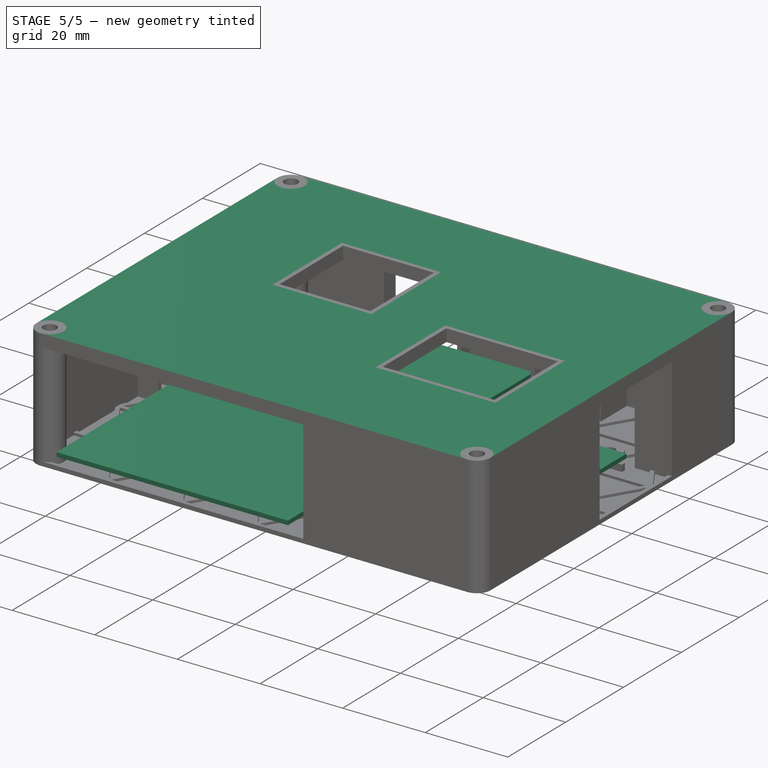
[diagram: stage 5 of 5 — iso view after this stage's code; geometry added in this stage tinted green]
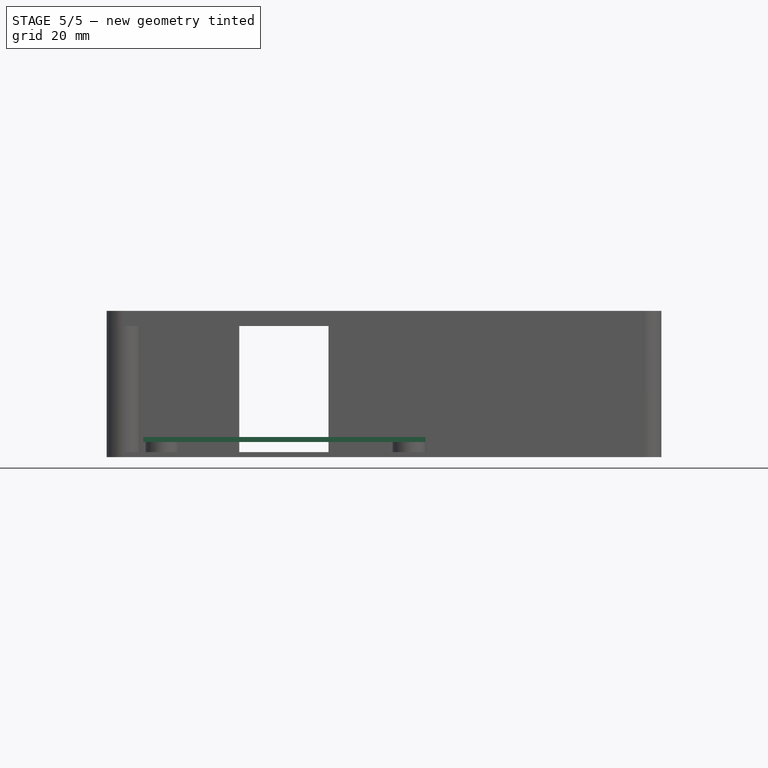
[diagram: stage 5 of 5 — front view after this stage's code; geometry added in this stage tinted green]
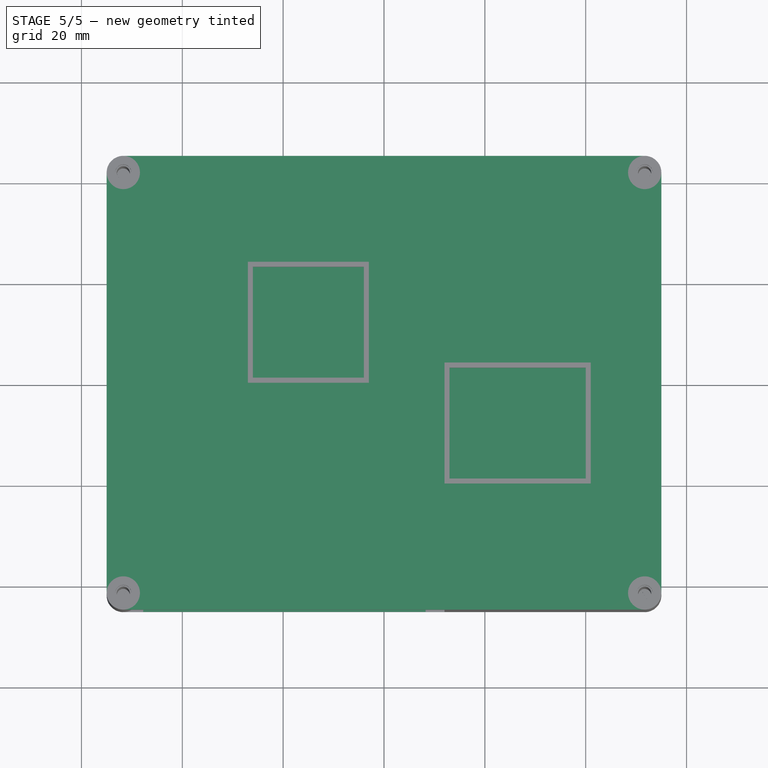
[diagram: stage 5 of 5 — top view after this stage's code; geometry added in this stage tinted green]
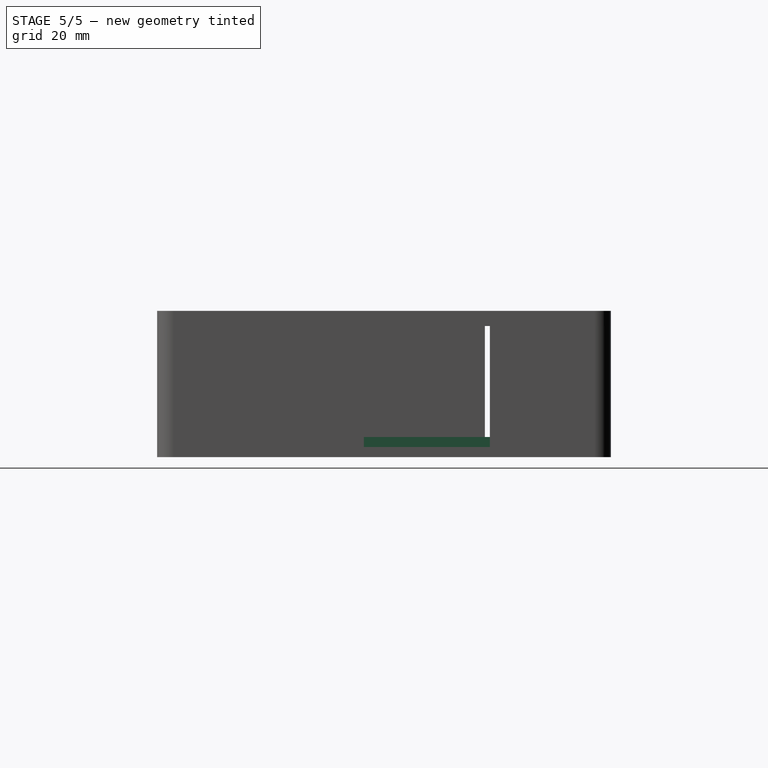
[diagram: stage 5 of 5 — right view after this stage's code; geometry added in this stage tinted green]
FEATURE [Part::Box] Box  label="Cube"
  AttacherType = Attacher::AttachEngine3D
  Height = 1
  Length = 32
  Placement = pos=(12,-22,2) rot=(0,0,1;0rad)
  Width = 43
FEATURE [Part::Box] Box001  label="Cube001"
  AttacherType = Attacher::AttachEngine3D
  Height = 1
  Length = 56
  Placement = pos=(-47.75,-45,3) rot=(0,0,1;0rad)
  Width = 85
FEATURE [Sketcher::SketchObject] Sketch006
  FullyConstrained = true
  Placement = pos=(0,0,27) rot=(0,0,1;0rad)
  sketch-geometry (4):
    g0: LineSegment StartX=-55 StartY=45 StartZ=0 EndX=55 EndY=45 EndZ=0
    g1: LineSegment StartX=55 StartY=45 StartZ=0 EndX=55 EndY=-45 EndZ=0
    g2: LineSegment StartX=55 StartY=-45 StartZ=0 EndX=-55 EndY=-45 EndZ=0
    g3: LineSegment StartX=-55 StartY=-45 StartZ=0 EndX=-55 EndY=45 EndZ=0
  constraints (12):
    c: Coincident(g0,g1)
    c: Coincident(g1,g2)
    c: Coincident(g2,g3)
    c: Coincident(g3,g0)
    c: Horizontal(g0)
    c: Horizontal(g2)
    c: Vertical(g1)
    c: Vertical(g3)
    c: DistanceX(g0,g0) = 110
    c: DistanceY(g1,g1) = 90
    c: DistanceX(g0) = 55
    c: DistanceY(g0) = 45
FEATURE [Part::Extrusion] Extrude006
  Base = -> Sketch006
  Dir = (0,0,1)
  DirMode = 2
  FaceMakerClass = Part::FaceMakerBullseye
  LengthFwd = 0
  LengthRev = 0.4
  Placement = pos=(0,0,2) rot=(0,0,1;0rad)
  Solid = true
  Symmetric = false
FEATURE [Part::MultiFuse] Fusion
  Shapes = -> [Extrude007,Extrude006,Extrude009]
FEATURE [Part::Cut] Cut  label="top"
  Base = -> Fusion
  Tool = -> Fusion001
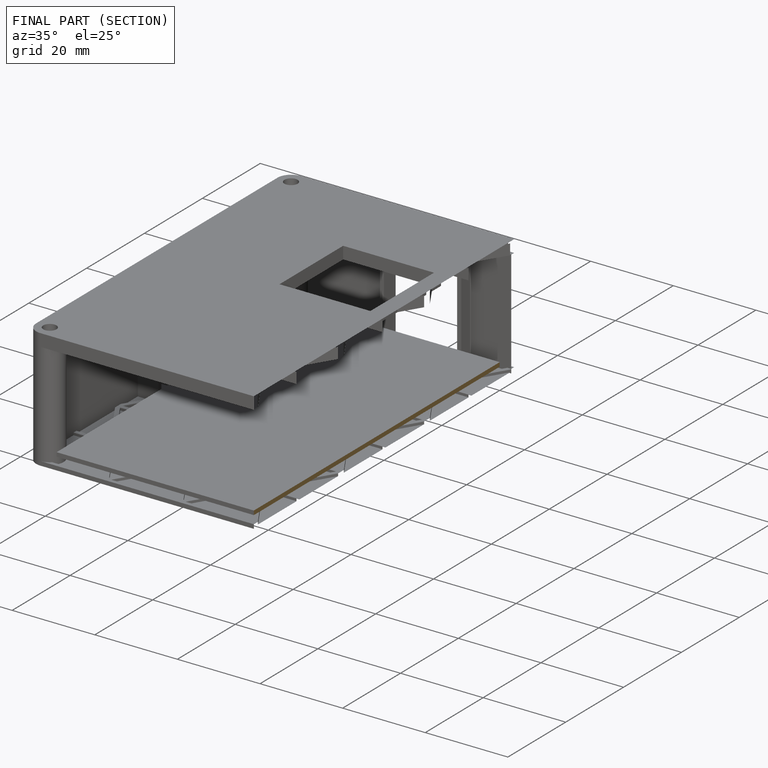
[diagram: finished part — half-section view (interior)]
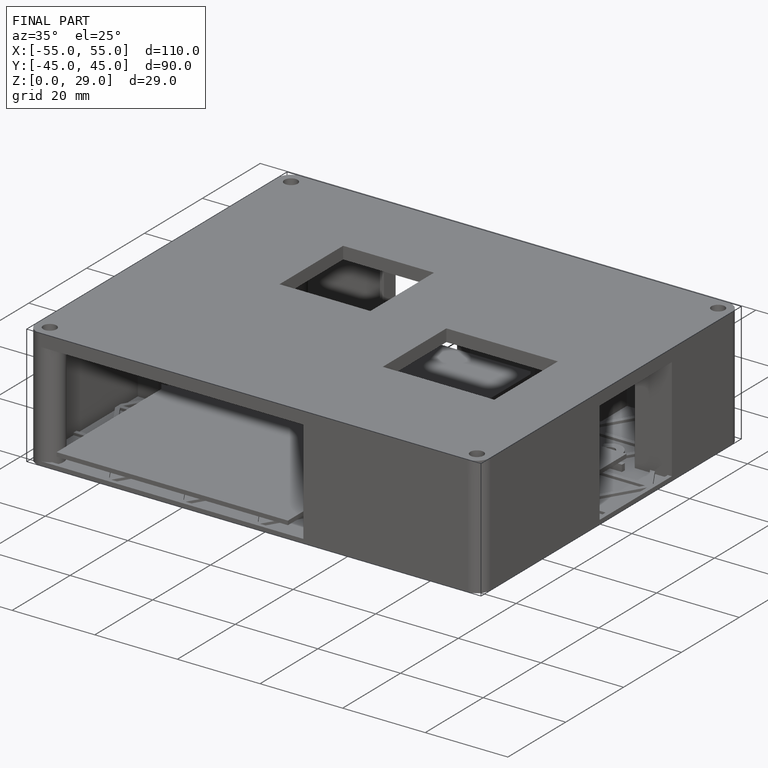
[diagram: finished part — iso view with bounding-box wireframe]
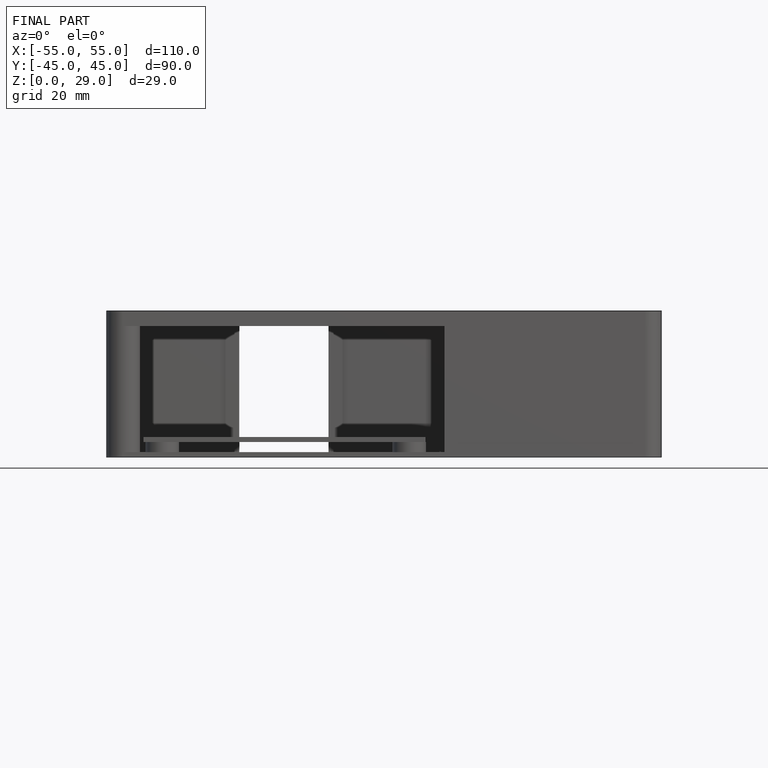
[diagram: finished part — front view with bounding-box wireframe]
